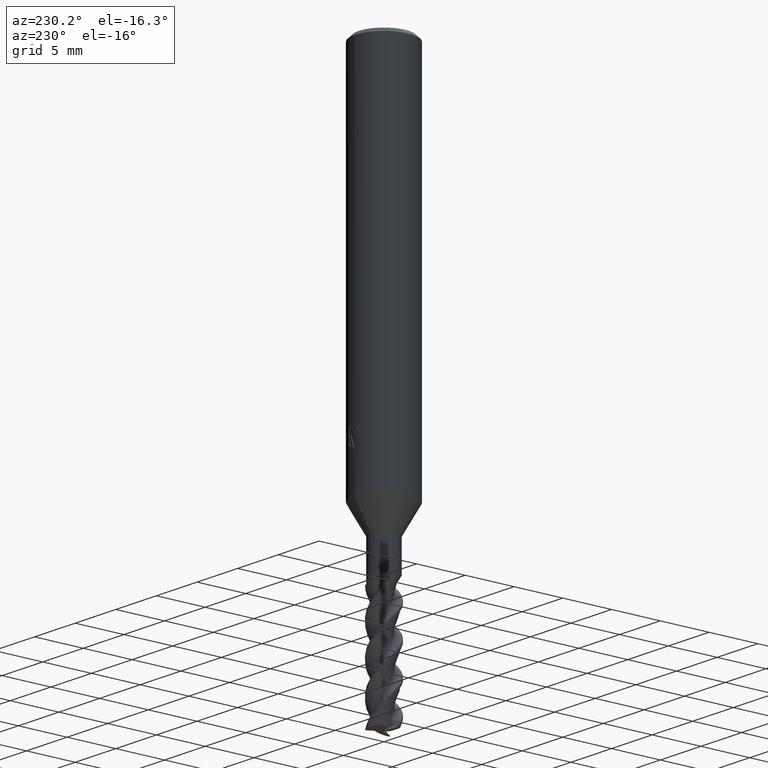
[diagram: clean part render]
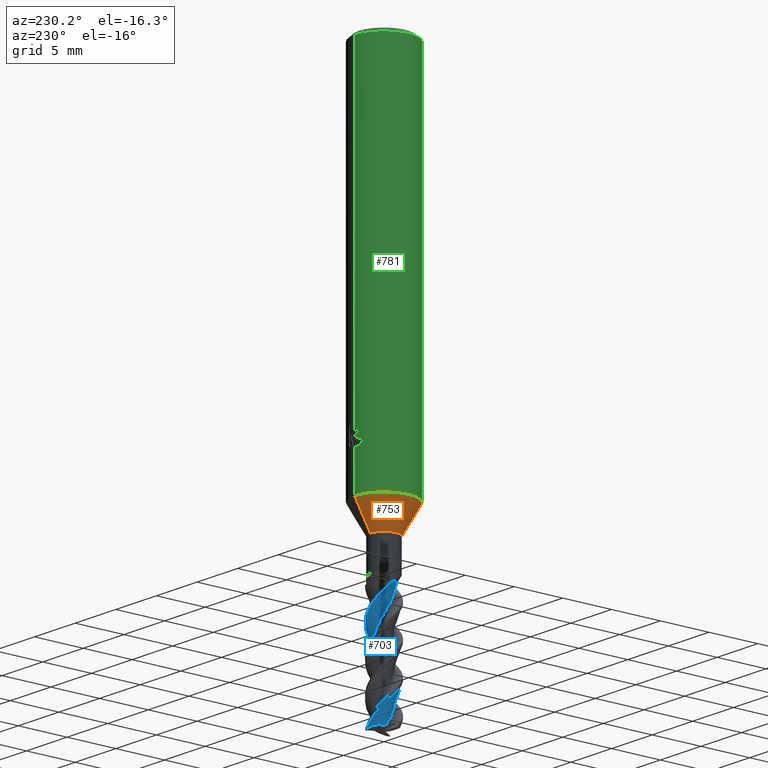
[diagram: same view with three faces highlighted in distinct colors, each labeled with its STEP entity id]
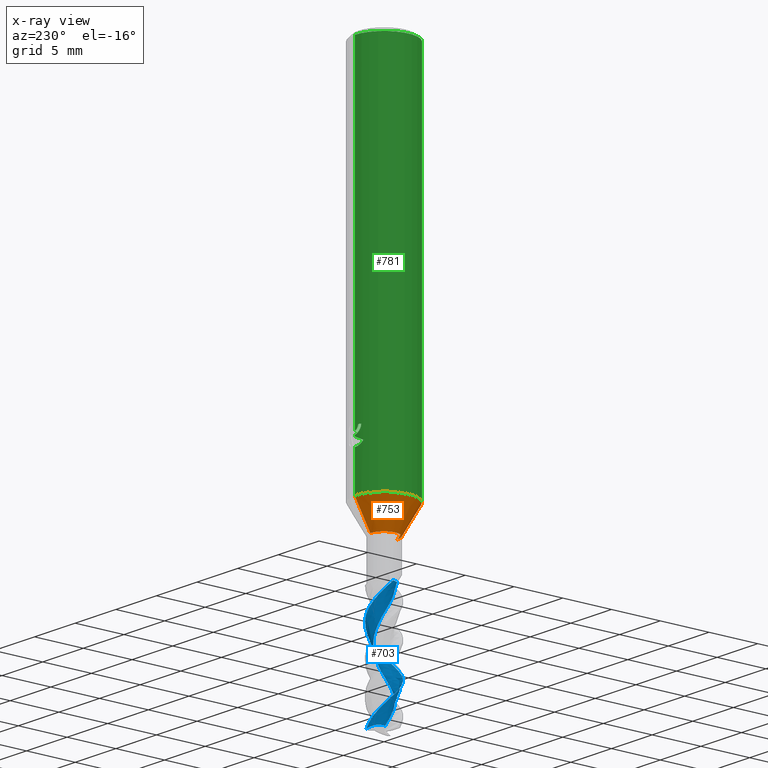
[diagram: x-ray of the same camera — body ghosted, the three highlighted faces saturated]
A machine part, auxiliary view with three faces highlighted in distinct colors.
The next image is the same camera in x-ray (body ghosted, the three faces saturated) — at least one of them is partly hidden behind the body in this view.
Their STEP definitions:

[orange] entity #753 — the highlighted conical surface has half-angle 30.003 deg.
#447=VERTEX_POINT('',#1290);
#455=EDGE_CURVE('',#447,#1127,#1300,.T.);
#475=VERTEX_POINT('',#1321);
#493=EDGE_CURVE('',#447,#475,#1340,.T.);
#753=ADVANCED_FACE('',(#1627),#1628,.T.);
#1023=EDGE_CURVE('',#1109,#475,#1925,.T.);
#1039=EDGE_CURVE('',#1127,#1109,#1942,.T.);
#1109=VERTEX_POINT('',#2019);
#1127=VERTEX_POINT('',#2037);
#1290=CARTESIAN_POINT('',(1.71438766503364E-016,-1.39995,-41.0));
#1300=LINE('',#2214,#2215);
#1321=CARTESIAN_POINT('',(0.0,1.39995,-41.0));
#1340=CIRCLE('',#2461,1.39995);
#1627=FACE_OUTER_BOUND('',#5024,.T.);
#1628=CONICAL_SURFACE('',#5025,2.19995,0.523642730836667);
#1925=LINE('',#7100,#7101);
#1942=CIRCLE('',#7189,2.99995);
#2019=CARTESIAN_POINT('',(0.0,2.99995,-38.229));
#2037=CARTESIAN_POINT('',(3.67375783114944E-016,-2.99995,-38.229));
#2214=CARTESIAN_POINT('',(2.69407274809154E-016,-2.19995,-39.6145));
#2215=VECTOR('',#9489,1.0);
#2461=AXIS2_PLACEMENT_3D('',#9514,#9515,#9516);
#5024=EDGE_LOOP('',(#9831,#9832,#9833,#9834));
#5025=AXIS2_PLACEMENT_3D('',#9835,#9836,#9837);
#7100=CARTESIAN_POINT('',(-2.69407274809154E-016,2.19995,-39.6145));
#7101=VECTOR('',#10151,1.0);
#7189=AXIS2_PLACEMENT_3D('',#10163,#10164,#10165);
#9489=DIRECTION('',(6.12349792617489E-017,-0.500038065870028,0.866003425328654));
#9514=CARTESIAN_POINT('',(0.0,0.0,-41.0));
#9515=DIRECTION('',(0.0,0.0,-1.0));
#9516=DIRECTION('',(0.0,1.0,0.0));
#9831=ORIENTED_EDGE('',*,*,#1023,.T.);
#9832=ORIENTED_EDGE('',*,*,#493,.F.);
#9833=ORIENTED_EDGE('',*,*,#455,.T.);
#9834=ORIENTED_EDGE('',*,*,#1039,.T.);
#9835=CARTESIAN_POINT('',(0.0,0.0,-39.6145));
#9836=DIRECTION('',(-0.0,-0.0,1.0));
#9837=DIRECTION('',(0.0,1.0,0.0));
#10151=DIRECTION('',(6.12349792617489E-017,-0.500038065870028,-0.866003425328654));
#10163=CARTESIAN_POINT('',(0.0,0.0,-38.229));
#10164=DIRECTION('',(0.0,0.0,-1.0));
#10165=DIRECTION('',(0.0,1.0,0.0));

[blue] entity #703 — the highlighted face is a freeform B-spline surface patch.
#461=EDGE_CURVE('',#1167,#649,#1307,.T.);
#649=VERTEX_POINT('',#1511);
#651=VERTEX_POINT('',#1513);
#673=VERTEX_POINT('',#1537);
#697=EDGE_CURVE('',#941,#1167,#1563,.T.);
#703=ADVANCED_FACE('',(#1570),#1571,.T.);
#705=EDGE_CURVE('',#649,#1165,#1573,.T.);
#817=EDGE_CURVE('',#651,#901,#1699,.T.);
#901=VERTEX_POINT('',#1789);
#903=EDGE_CURVE('',#1065,#673,#1791,.T.);
#919=EDGE_CURVE('',#673,#651,#1807,.T.);
#941=VERTEX_POINT('',#1833);
#1055=EDGE_CURVE('',#1165,#1065,#1959,.T.);
#1065=VERTEX_POINT('',#1969);
#1165=VERTEX_POINT('',#2079);
#1167=VERTEX_POINT('',#2081);
#1199=EDGE_CURVE('',#941,#901,#2115,.T.);
#1307=B_SPLINE_CURVE_WITH_KNOTS('',3,(#2225,#2226,#2227,#2228,#2229,#2230,#2231,#2232,#2233,#2234,#2235,#2236,#2237,#2238,#2239,#2240,#2241,#2242,#2243,#2244,#2245,#2246,#2247,#2248,#2249,#2250,#2251,#2252,#2253,#2254,#2255,#2256,#2257,#2258,#2259,#2260,#2261,#2262,#2263,#2264,#2265,#2266,#2267,#2268,#2269,#2270,#2271,#2272,#2273,#2274,#2275,#2276),.UNSPECIFIED.,.F.,.F.,(4,2,2,2,2,2,2,2,2,2,2,2,2,2,2,2,2,2,2,2,2,2,2,2,2,4),(0.0,0.335784744485025,0.900218258308625,2.00728913039195,2.30662984356167,2.49481145178889,2.59872045961856,2.77701591779145,2.88371388111913,2.93617517319861,3.01654445982375,3.0433724284719,3.06262599934318,3.07270456719304,3.0844253360041,3.10307423951914,3.11029806399619,3.11596061731137,3.1189593010885,3.12597468859705,3.12882863639295,3.14073274587673,3.14699737106801,3.15115317764953,3.1582665146102,3.16414719072707),.UNSPECIFIED.);
#1511=CARTESIAN_POINT('',(-1.72818149550161E-009,1.49999587007742,-56.5044092900785));
#1513=CARTESIAN_POINT('',(-0.543192040309939,-0.698284256612274,-45.0));
#1537=CARTESIAN_POINT('',(-1.47462124527694,0.274211949006387,-45.0));
#1563=B_SPLINE_CURVE_WITH_KNOTS('',3,(#4070,#4071,#4072,#4073,#4074,#4075,#4076,#4077,#4078,#4079,#4080,#4081),.UNSPECIFIED.,.F.,.F.,(4,2,2,2,2,4),(0.0,0.443561133397149,0.85743354970941,1.2962677194808,1.61144591278835,1.95448455100426),.UNSPECIFIED.);
#1570=FACE_OUTER_BOUND('',#4141,.T.);
#1571=B_SPLINE_SURFACE_WITH_KNOTS('',3,3,((#4142,#4143,#4144,#4145,#4146,#4147,#4148,#4149,#4150,#4151,#4152,#4153,#4154,#4155,#4156,#4157,#4158,#4159,#4160,#4161,#4162,#4163,#4164,#4165,#4166,#4167,#4168,#4169,#4170,#4171,#4172,#4173,#4174,#4175,#4176,#4177,#4178,#4179,#4180,#4181,#4182,#4183,#4184,#4185,#4186,#4187,#4188,#4189,#4190,#4191,#4192,#4193,#4194,#4195,#4196,#4197,#4198,#4199,#4200,#4201,#4202,#4203,#4204,#4205,#4206,#4207,#4208),(#4209,#4210,#4211,#4212,#4213,#4214,#4215,#4216,#4217,#4218,#4219,#4220,#4221,#4222,#4223,#4224,#4225,#4226,#4227,#4228,#4229,#4230,#4231,#4232,#4233,#4234,#4235,#4236,#4237,#4238,#4239,#4240,#4241,#4242,#4243,#4244,#4245,#4246,#4247,#4248,#4249,#4250,#4251,#4252,#4253,#4254,#4255,#4256,#4257,#4258,#4259,#4260,#4261,#4262,#4263,#4264,#4265,#4266,#4267,#4268,#4269,#4270,#4271,#4272,#4273,#4274,#4275),(#4276,#4277,#4278,#4279,#4280,#4281,#4282,#4283,#4284,#4285,#4286,#4287,#4288,#4289,#4290,#4291,#4292,#4293,#4294,#4295,#4296,#4297,#4298,#4299,#4300,#4301,#4302,#4303,#4304,#4305,#4306,#4307,#4308,#4309,#4310,#4311,#4312,#4313,#4314,#4315,#4316,#4317,#4318,#4319,#4320,#4321,#4322,#4323,#4324,#4325,#4326,#4327,#4328,#4329,#4330,#4331,#4332,#4333,#4334,#4335,#4336,#4337,#4338,#4339,#4340,#4341,#4342),(#4343,#4344,#4345,#4346,#4347,#4348,#4349,#4350,#4351,#4352,#4353,#4354,#4355,#4356,#4357,#4358,#4359,#4360,#4361,#4362,#4363,#4364,#4365,#4366,#4367,#4368,#4369,#4370,#4371,#4372,#4373,#4374,#4375,#4376,#4377,#4378,#4379,#4380,#4381,#4382,#4383,#4384,#4385,#4386,#4387,#4388,#4389,#4390,#4391,#4392,#4393,#4394,#4395,#4396,#4397,#4398,#4399,#4400,#4401,#4402,#4403,#4404,#4405,#4406,#4407,#4408,#4409),(#4410,#4411,#4412,#4413,#4414,#4415,#4416,#4417,#4418,#4419,#4420,#4421,#4422,#4423,#4424,#4425,#4426,#4427,#4428,#4429,#4430,#4431,#4432,#4433,#4434,#4435,#4436,#4437,#4438,#4439,#4440,#4441,#4442,#4443,#4444,#4445,#4446,#4447,#4448,#4449,#4450,#4451,#4452,#4453,#4454,#4455,#4456,#4457,#4458,#4459,#4460,#4461,#4462,#4463,#4464,#4465,#4466,#4467,#4468,#4469,#4470,#4471,#4472,#4473,#4474,#4475,#4476),(#4477,#4478,#4479,#4480,#4481,#4482,#4483,#4484,#4485,#4486,#4487,#4488,#4489,#4490,#4491,#4492,#4493,#4494,#4495,#4496,#4497,#4498,#4499,#4500,#4501,#4502,#4503,#4504,#4505,#4506,#4507,#4508,#4509,#4510,#4511,#4512,#4513,#4514,#4515,#4516,#4517,#4518,#4519,#4520,#4521,#4522,#4523,#4524,#4525,#4526,#4527,#4528,#4529,#4530,#4531,#4532,#4533,#4534,#4535,#4536,#4537,#4538,#4539,#4540,#4541,#4542,#4543)),.UNSPECIFIED.,.F.,.F.,.F.,(4,1,1,4),(4,1,2,1,2,1,2,1,1,2,2,2,2,2,2,2,2,2,2,2,2,2,2,2,2,2,2,2,2,2,2,2,1,1,2,2,4),(-1.37901021707789,-0.861881385673684,-0.344752554269474,0.0),(0.0,0.28264834390618,0.565296687812361,0.847945031718541,1.13059337562472,1.69589006343708,2.26118675124944,2.68515926710871,3.10913178296798,3.39178012687416,3.95707681468652,4.52237350249889,5.08767019031125,5.65296687812361,6.21826356593597,6.78356025374833,7.34885694156069,7.91415362937305,8.47945031718541,9.04474700499777,9.61004369281013,10.1753403806225,10.7406370684349,11.3059337562472,11.8712304440596,12.4365271318719,13.0018238196843,13.5671205074967,14.132417195309,14.6977138831214,15.2630105709337,15.8283072587461,16.1109556026523,16.5349281185115,16.9589006343708,17.5241973221832,18.0894940099955),.UNSPECIFIED.);
#1573=B_SPLINE_CURVE_WITH_KNOTS('',3,(#4546,#4547,#4548,#4549,#4550,#4551,#4552,#4553,#4554,#4555,#4556,#4557,#4558,#4559,#4560,#4561,#4562,#4563,#4564,#4565,#4566,#4567,#4568,#4569,#4570,#4571,#4572,#4573,#4574,#4575,#4576,#4577,#4578,#4579,#4580,#4581,#4582,#4583,#4584,#4585,#4586,#4587,#4588,#4589,#4590,#4591,#4592,#4593,#4594,#4595,#4596,#4597),.UNSPECIFIED.,.F.,.F.,(4,2,2,2,2,2,2,2,2,2,2,2,2,2,2,2,2,2,2,2,2,2,2,2,2,4),(0.0,0.335784744485025,0.900218258308625,2.00728913039195,2.30662984356167,2.49481145178889,2.59872045961856,2.77701591779145,2.88371388111913,2.93617517319861,3.01654445982375,3.0433724284719,3.06262599934318,3.07270456719304,3.0844253360041,3.10307423951914,3.11029806399619,3.11596061731137,3.1189593010885,3.12597468859705,3.12882863639295,3.14073274587673,3.14699737106801,3.15115317764953,3.1582665146102,3.16414719072707),.UNSPECIFIED.);
#1699=B_SPLINE_CURVE_WITH_KNOTS('',3,(#5665,#5666,#5667,#5668,#5669,#5670,#5671,#5672,#5673,#5674),.UNSPECIFIED.,.F.,.F.,(4,2,2,2,4),(0.0,0.484478482145497,0.968928230783798,1.33207712092287,1.6952163034577),.UNSPECIFIED.);
#1789=CARTESIAN_POINT('',(-0.45306024224006,-0.716179641491189,-45.0));
#1791=B_SPLINE_CURVE_WITH_KNOTS('',3,(#6027,#6028,#6029,#6030,#6031,#6032,#6033,#6034,#6035,#6036,#6037,#6038,#6039,#6040,#6041,#6042,#6043,#6044,#6045,#6046,#6047,#6048,#6049,#6050,#6051,#6052,#6053,#6054,#6055,#6056,#6057,#6058,#6059,#6060,#6061,#6062,#6063,#6064,#6065,#6066,#6067,#6068,#6069,#6070,#6071,#6072,#6073,#6074,#6075,#6076,#6077,#6078),.UNSPECIFIED.,.F.,.F.,(4,2,2,2,2,2,2,2,2,2,2,2,2,2,2,2,2,2,2,2,2,2,2,2,2,4),(0.0,0.335784744485025,0.900218258308625,2.00728913039195,2.30662984356167,2.49481145178889,2.59872045961856,2.77701591779145,2.88371388111913,2.93617517319861,3.01654445982375,3.0433724284719,3.06262599934318,3.07270456719304,3.0844253360041,3.10307423951914,3.11029806399619,3.11596061731137,3.1189593010885,3.12597468859705,3.12882863639295,3.14073274587673,3.14699737106801,3.15115317764953,3.1582665146102,3.16414719072707),.UNSPECIFIED.);
#1807=B_SPLINE_CURVE_WITH_KNOTS('',3,(#6105,#6106,#6107,#6108,#6109,#6110,#6111,#6112,#6113,#6114),.UNSPECIFIED.,.F.,.F.,(4,2,2,2,4),(0.0,0.484478482145497,0.968928230783798,1.33207712092287,1.6952163034577),.UNSPECIFIED.);
#1833=CARTESIAN_POINT('',(-0.708387927515714,0.466406533219846,-56.7912450452387));
#1959=B_SPLINE_CURVE_WITH_KNOTS('',3,(#7238,#7239,#7240,#7241,#7242,#7243,#7244,#7245,#7246,#7247,#7248,#7249,#7250,#7251,#7252,#7253,#7254,#7255,#7256,#7257,#7258,#7259,#7260,#7261,#7262,#7263,#7264,#7265,#7266,#7267,#7268,#7269,#7270,#7271,#7272,#7273,#7274,#7275,#7276,#7277,#7278,#7279,#7280,#7281,#7282,#7283,#7284,#7285,#7286,#7287,#7288,#7289),.UNSPECIFIED.,.F.,.F.,(4,2,2,2,2,2,2,2,2,2,2,2,2,2,2,2,2,2,2,2,2,2,2,2,2,4),(0.0,0.335784744485025,0.900218258308625,2.00728913039195,2.30662984356167,2.49481145178889,2.59872045961856,2.77701591779145,2.88371388111913,2.93617517319861,3.01654445982375,3.0433724284719,3.06262599934318,3.07270456719304,3.0844253360041,3.10307423951914,3.11029806399619,3.11596061731137,3.1189593010885,3.12597468859705,3.12882863639295,3.14073274587673,3.14699737106801,3.15115317764953,3.1582665146102,3.16414719072707),.UNSPECIFIED.);
#1969=CARTESIAN_POINT('',(5.02184909250198E-014,1.49991730039272,-47.0760471261266));
#2079=CARTESIAN_POINT('',(3.13913062189314E-009,-1.49995661223871,-51.7934686449026));
#2081=CARTESIAN_POINT('',(0.462884670952389,1.42679252223007,-56.9648037701929));
#2115=B_SPLINE_CURVE_WITH_KNOTS('',3,(#9185,#9186,#9187,#9188,#9189,#9190,#9191,#9192,#9193,#9194,#9195,#9196,#9197,#9198,#9199,#9200,#9201,#9202,#9203,#9204,#9205,#9206,#9207,#9208,#9209,#9210,#9211,#9212,#9213,#9214,#9215,#9216,#9217,#9218,#9219,#9220,#9221,#9222,#9223,#9224,#9225,#9226,#9227,#9228,#9229,#9230,#9231,#9232,#9233,#9234,#9235,#9236,#9237,#9238,#9239,#9240,#9241,#9242,#9243,#9244,#9245,#9246,#9247,#9248,#9249,#9250,#9251,#9252,#9253,#9254,#9255,#9256,#9257,#9258,#9259,#9260,#9261,#9262,#9263,#9264,#9265,#9266,#9267,#9268,#9269,#9270,#9271,#9272,#9273,#9274,#9275,#9276,#9277,#9278,#9279,#9280,#9281,#9282,#9283,#9284,#9285,#9286,#9287,#9288,#9289,#9290),.UNSPECIFIED.,.F.,.F.,(4,2,2,2,2,2,2,2,2,2,2,2,2,2,2,2,2,2,2,2,2,2,2,2,2,2,2,2,2,2,2,2,2,2,2,2,2,2,2,2,2,2,2,2,2,2,2,2,2,2,2,2,4),(-2.96306627762569,-2.96283491642798,-2.96246826354313,-2.96220045708334,-2.96209100045431,-2.96186243251804,-2.96151811162838,-2.96115460819838,-2.96086510101758,-2.960280978162,-2.9597786632126,-2.95865050812058,-2.95756209555717,-2.95621699719974,-2.95573151120857,-2.95449417955791,-2.95191228117216,-2.95060271671424,-2.94789838394698,-2.94564239957483,-2.94057294141096,-2.9357450698218,-2.92977494294032,-2.92757047423404,-2.92197072646106,-2.91018335135469,-2.90422381086335,-2.89187596549351,-2.88167399408204,-2.8588818350918,-2.83696454458899,-2.81000972375811,-2.80003558878217,-2.77471007781571,-2.72134887494441,-2.69437819842017,-2.63849052786713,-2.5923335221113,-2.48925544314555,-2.39004901439442,-2.26816566021116,-2.17070591611219,-1.95777287310117,-1.74083362306664,-1.50643269678885,-1.43460360653714,-1.24869074684838,-0.875175764393088,-0.683384120286806,-0.493525507638708,-0.412980130193546,-0.238536444428689,-0.0),.UNSPECIFIED.);
#2225=CARTESIAN_POINT('',(0.495588686639535,1.41576546563154,-57.0));
#2226=CARTESIAN_POINT('',(0.421699457025819,1.44162968339941,-56.920004020583));
#2227=CARTESIAN_POINT('',(0.345134829858748,1.46194148616394,-56.8403946239205));
#2228=CARTESIAN_POINT('',(0.134153276522927,1.50002097752449,-56.6302504631107));
#2229=CARTESIAN_POINT('',(0.00179547763044238,1.50613381156919,-56.5082538482105));
#2230=CARTESIAN_POINT('',(-0.398904409328534,1.47032247387351,-56.1059615637585));
#2231=CARTESIAN_POINT('',(-0.656304443995121,1.37607644936797,-55.8224784063724));
#2232=CARTESIAN_POINT('',(-0.937253212357702,1.17343705497586,-55.4891564008471));
#2233=CARTESIAN_POINT('',(-1.07160800886317,1.07214008442156,-55.3332472465616));
#2234=CARTESIAN_POINT('',(-1.28463774995242,0.786494416127152,-54.9693551876277));
#2235=CARTESIAN_POINT('',(-1.3514989175209,0.66520266208164,-54.8261650194681));
#2236=CARTESIAN_POINT('',(-1.42816726848066,0.464867146512914,-54.6090239083568));
#2237=CARTESIAN_POINT('',(-1.4502701755888,0.39083446297095,-54.5323650441782));
#2238=CARTESIAN_POINT('',(-1.49472975229674,0.183485095753831,-54.3273128447971));
#2239=CARTESIAN_POINT('',(-1.51734974769528,-0.00778174907122228,-54.1471095335447));
#2240=CARTESIAN_POINT('',(-1.46020501569385,-0.36948021233142,-53.7710964162675));
#2241=CARTESIAN_POINT('',(-1.42018358096051,-0.502328742795428,-53.6281669777912));
#2242=CARTESIAN_POINT('',(-1.33324777275338,-0.690678142567897,-53.4206160921322));
#2243=CARTESIAN_POINT('',(-1.30007576272406,-0.751400390712668,-53.3528417446881));
#2244=CARTESIAN_POINT('',(-1.20442491829872,-0.900412920160359,-53.1835992862496));
#2245=CARTESIAN_POINT('',(-1.0412757087855,-1.1385763180535,-52.9105759590264));
#2246=CARTESIAN_POINT('',(-0.61906851306153,-1.37157017952392,-52.4166575606282));
#2247=CARTESIAN_POINT('',(-0.505002307104041,-1.41790088071489,-52.2936272887575));
#2248=CARTESIAN_POINT('',(-0.297707192789448,-1.47284626807365,-52.087962489863));
#2249=CARTESIAN_POINT('',(-0.0991918365357573,-1.51948338706647,-51.8977821851552));
#2250=CARTESIAN_POINT('',(0.298073219858977,-1.47643685454509,-51.4866961249882));
#2251=CARTESIAN_POINT('',(0.43323551663717,-1.4428238847567,-51.343607723133));
#2252=CARTESIAN_POINT('',(0.713734899294974,-1.32925077224749,-51.042792889186));
#2253=CARTESIAN_POINT('',(0.850890529333471,-1.24596760820375,-50.8965574945521));
#2254=CARTESIAN_POINT('',(1.17207683731866,-0.971297908052357,-50.4723247676338));
#2255=CARTESIAN_POINT('',(1.3317248514767,-0.746252450592177,-50.1866627630443));
#2256=CARTESIAN_POINT('',(1.45698916072365,-0.372947388706531,-49.8099011857391));
#2257=CARTESIAN_POINT('',(1.50569926661703,-0.192335497707508,-49.63305643697));
#2258=CARTESIAN_POINT('',(1.49443816233607,0.223224523377159,-49.2056929245386));
#2259=CARTESIAN_POINT('',(1.45605402930537,0.406768019860923,-49.0139596919411));
#2260=CARTESIAN_POINT('',(1.34400638221744,0.673399406846149,-48.7343026401242));
#2261=CARTESIAN_POINT('',(1.28341119118271,0.792285386437317,-48.6101037911576));
#2262=CARTESIAN_POINT('',(0.959953515858688,1.21057027411054,-48.0765690012938));
#2263=CARTESIAN_POINT('',(0.684025409802291,1.34417074797023,-47.7736572389021));
#2264=CARTESIAN_POINT('',(0.476658656239133,1.42361658996527,-47.563410297214));
#2265=CARTESIAN_POINT('',(0.415945865936118,1.44246508865925,-47.5018771656047));
#2266=CARTESIAN_POINT('',(0.100014950304375,1.51938889035683,-47.1803800913509));
#2267=CARTESIAN_POINT('',(-0.166412163817259,1.51371507744372,-46.9036108793167));
#2268=CARTESIAN_POINT('',(-0.552131917934716,1.40145446291707,-46.5092491716416));
#2269=CARTESIAN_POINT('',(-0.676766354333359,1.34582593313994,-46.3835968671183));
#2270=CARTESIAN_POINT('',(-0.873837294049283,1.2225914032173,-46.1506988945347));
#2271=CARTESIAN_POINT('',(-0.947121438056285,1.16663248907381,-46.0564086508929));
#2272=CARTESIAN_POINT('',(-1.12957763179067,0.99910983160333,-45.8012402652973));
#2273=CARTESIAN_POINT('',(-1.22938239454233,0.874275740611077,-45.6382378154275));
#2274=CARTESIAN_POINT('',(-1.3735011816044,0.617242968777582,-45.351470328573));
#2275=CARTESIAN_POINT('',(-1.43940873727146,0.463582126781001,-45.1962632358606));
#2276=CARTESIAN_POINT('',(-1.47462124527694,0.274211949006404,-45.0));
#4070=CARTESIAN_POINT('',(-0.709620087130326,0.457981615038838,-56.7922670403609));
#4071=CARTESIAN_POINT('',(-0.688871827971802,0.603289949398419,-56.7744985963335));
#4072=CARTESIAN_POINT('',(-0.64280217809729,0.743888793272749,-56.7646204085519));
#4073=CARTESIAN_POINT('',(-0.501844862632431,0.992021775726104,-56.7639725592326));
#4074=CARTESIAN_POINT('',(-0.412775268992186,1.09691093271641,-56.7719954612042));
#4075=CARTESIAN_POINT('',(-0.193108527749238,1.27334989875971,-56.8051429547749));
#4076=CARTESIAN_POINT('',(-0.0644165534795469,1.33925721935192,-56.8306481302944));
#4077=CARTESIAN_POINT('',(0.170568242405531,1.40881422726196,-56.8854699782026));
#4078=CARTESIAN_POINT('',(0.27162129289015,1.42439067608545,-56.911374618314));
#4079=CARTESIAN_POINT('',(0.482948293480785,1.43068374262914,-56.9698172800017));
#4080=CARTESIAN_POINT('',(0.592586461046095,1.41907530506222,-57.0025541276673));
#4081=CARTESIAN_POINT('',(0.69896785982176,1.39425055950465,-57.0365216767496));
#4141=EDGE_LOOP('',(#9752,#9753,#9754,#9755,#9756,#9757,#9758,#9759));
#4142=CARTESIAN_POINT('',(1.0818724398929,-1.12390036191185,-60.0));
#4143=CARTESIAN_POINT('',(1.11259160832009,-1.0944831254953,-59.9062472136295));
#4144=CARTESIAN_POINT('',(1.19503100613329,-1.01139402726058,-59.7187664815209));
#4145=CARTESIAN_POINT('',(1.30750088596949,-0.857631761087166,-59.5312868911648));
#4146=CARTESIAN_POINT('',(1.41705019556677,-0.660472688876507,-59.3437667958251));
#4147=CARTESIAN_POINT('',(1.49933844320333,-0.463361914018934,-59.1562438658431));
#4148=CARTESIAN_POINT('',(1.53937503733965,-0.268522749570971,-58.9687393257113));
#4149=CARTESIAN_POINT('',(1.57194633918049,0.0263806195281832,-58.687502012446));
#4150=CARTESIAN_POINT('',(1.54095851806043,0.402815093430767,-58.3125028811778));
#4151=CARTESIAN_POINT('',(1.37963348262373,0.755862025245339,-57.937526250671));
#4152=CARTESIAN_POINT('',(1.16589879774969,1.04728392605779,-57.6093926414607));
#4153=CARTESIAN_POINT('',(0.957948630643784,1.25499612962626,-57.3281237222664));
#4154=CARTESIAN_POINT('',(0.630371794986704,1.44194743870235,-56.9531259903456));
#4155=CARTESIAN_POINT('',(0.392330797307619,1.51286265520913,-56.7187599188599));
#4156=CARTESIAN_POINT('',(0.0890881530768834,1.57052566812806,-56.4375118269946));
#4157=CARTESIAN_POINT('',(-0.104585839740336,1.56767105784932,-56.2500024396686));
#4158=CARTESIAN_POINT('',(-0.477133988910891,1.49691800638667,-55.8750028036659));
#4159=CARTESIAN_POINT('',(-0.658137454010031,1.42867479084619,-55.6875125580477));
#4160=CARTESIAN_POINT('',(-1.00569847462951,1.20952484047743,-55.3125120842336));
#4161=CARTESIAN_POINT('',(-1.14512925310349,1.07571226130593,-55.1250020259868));
#4162=CARTESIAN_POINT('',(-1.36923448802218,0.770423029541366,-54.7500019829544));
#4163=CARTESIAN_POINT('',(-1.45522002452324,0.597223769649273,-54.5625119984433));
#4164=CARTESIAN_POINT('',(-1.56031911585239,0.199618828607973,-54.1875118329358));
#4165=CARTESIAN_POINT('',(-1.57112915455381,0.00652260806313343,-54.0000017306805));
#4166=CARTESIAN_POINT('',(-1.52697841593204,-0.369741754152878,-53.6250015646107));
#4167=CARTESIAN_POINT('',(-1.47180846261341,-0.555067178800483,-53.437511500485));
#4168=CARTESIAN_POINT('',(-1.27771456914723,-0.917535735767364,-53.0625114341023));
#4169=CARTESIAN_POINT('',(-1.15402018172363,-1.06617354326831,-52.8750013983539));
#4170=CARTESIAN_POINT('',(-0.865252041703758,-1.31137687222811,-52.5000013123698));
#4171=CARTESIAN_POINT('',(-0.698555447781171,-1.4093766327435,-52.3125112622534));
#4172=CARTESIAN_POINT('',(-0.309459498579287,-1.54229167107057,-51.9375111409895));
#4173=CARTESIAN_POINT('',(-0.117637989882863,-1.56673230954046,-51.750001084363));
#4174=CARTESIAN_POINT('',(0.260785973439628,-1.54930993703802,-51.3750009766956));
#4175=CARTESIAN_POINT('',(0.449553812784772,-1.50739001629847,-51.1875109256266));
#4176=CARTESIAN_POINT('',(0.824852575300217,-1.33942062568606,-50.8125108156497));
#4177=CARTESIAN_POINT('',(0.981867517416756,-1.22655029377111,-50.6250007621574));
#4178=CARTESIAN_POINT('',(1.2468824554253,-0.955853082909097,-50.2500006554807));
#4179=CARTESIAN_POINT('',(1.35642803115409,-0.796508631862016,-50.0625106022868));
#4180=CARTESIAN_POINT('',(1.51653563195174,-0.417790156339548,-49.6875104855953));
#4181=CARTESIAN_POINT('',(1.55448510596629,-0.228177564071871,-49.5000004304955));
#4182=CARTESIAN_POINT('',(1.56387666734682,0.150532311199026,-49.1250003232164));
#4183=CARTESIAN_POINT('',(1.53541516259264,0.341793552998637,-48.9375102710224));
#4184=CARTESIAN_POINT('',(1.39441503310761,0.728035013203333,-48.5625101562857));
#4185=CARTESIAN_POINT('',(1.29293435685176,0.892641692925868,-48.3750001009082));
#4186=CARTESIAN_POINT('',(1.04166069242176,1.17614318806485,-47.9999999882735));
#4187=CARTESIAN_POINT('',(0.89046319179103,1.29668701067195,-47.8125099309894));
#4188=CARTESIAN_POINT('',(0.524016608606498,1.4831838914026,-47.4375098004873));
#4189=CARTESIAN_POINT('',(0.337563395458672,1.53445090829404,-47.2499997478034));
#4190=CARTESIAN_POINT('',(-0.0395404039671746,1.57060710800135,-46.8749996617791));
#4191=CARTESIAN_POINT('',(-0.232343224089508,1.55574540813598,-46.6875096285459));
#4192=CARTESIAN_POINT('',(-0.627615891833496,1.44240543942226,-46.3125095486271));
#4193=CARTESIAN_POINT('',(-0.798985437256069,1.35281433392037,-46.1249994783833));
#4194=CARTESIAN_POINT('',(-1.09951774179746,1.12224238631651,-45.7499993470376));
#4195=CARTESIAN_POINT('',(-1.23042535083369,0.979978927720002,-45.5625092858211));
#4196=CARTESIAN_POINT('',(-1.44234087893573,0.627739843744395,-45.1875092476355));
#4197=CARTESIAN_POINT('',(-1.50670201625218,0.44536961022746,-44.9999992449165));
#4198=CARTESIAN_POINT('',(-1.56947511265725,0.0716471626048257,-44.624999005683));
#4199=CARTESIAN_POINT('',(-1.56828213396528,-0.121832257459124,-44.437508768544));
#4200=CARTESIAN_POINT('',(-1.50440506480669,-0.423654676046873,-44.1562581168483));
#4201=CARTESIAN_POINT('',(-1.42857244730803,-0.660284116607025,-43.9218747727391));
#4202=CARTESIAN_POINT('',(-1.2344667806325,-0.984253947139421,-43.5468706120809));
#4203=CARTESIAN_POINT('',(-1.02256091757988,-1.18754447833534,-43.2656352862255));
#4204=CARTESIAN_POINT('',(-0.727833613344265,-1.39455500415962,-42.9375128139711));
#4205=CARTESIAN_POINT('',(-0.550048840162801,-1.47168573694151,-42.7500020212529));
#4206=CARTESIAN_POINT('',(-0.18241938455448,-1.56047129132992,-42.3749988608727));
#4207=CARTESIAN_POINT('',(0.0094303496882121,-1.57268083611714,-42.1875064699942));
#4208=CARTESIAN_POINT('',(0.21075197916808,-1.54520882904501,-42.0000061981756));
#4209=CARTESIAN_POINT('',(1.17847804800101,-0.933191952056812,-60.0));
#4210=CARTESIAN_POINT('',(1.2034050496801,-0.900840742263432,-59.906217831718));
#4211=CARTESIAN_POINT('',(1.27046488477451,-0.810523025081752,-59.7188318108223));
#4212=CARTESIAN_POINT('',(1.35785843616275,-0.649305538603335,-59.5314722320527));
#4213=CARTESIAN_POINT('',(1.43728877643359,-0.447105332706858,-59.3438579161368));
#4214=CARTESIAN_POINT('',(1.49055590091731,-0.248405484228556,-59.1562193592263));
#4215=CARTESIAN_POINT('',(1.50361157985151,-0.0573191959646069,-58.9686876768721));
#4216=CARTESIAN_POINT('',(1.49663134606262,0.228279939610423,-58.6875113416774));
#4217=CARTESIAN_POINT('',(1.41821362986459,0.583379425668711,-58.3125164294946));
#4218=CARTESIAN_POINT('',(1.2186430762619,0.899311808399555,-57.9376628899305));
#4219=CARTESIAN_POINT('',(0.977211069834356,1.14997289812935,-57.6094870668528));
#4220=CARTESIAN_POINT('',(0.751936698565499,1.32129825320602,-57.3281221403537));
#4221=CARTESIAN_POINT('',(0.415190655366198,1.45715619897278,-56.9531360549941));
#4222=CARTESIAN_POINT('',(0.17891077222887,1.49411436138271,-56.7188156564168));
#4223=CARTESIAN_POINT('',(-0.117904212450367,1.51015751527624,-56.4375774331218));
#4224=CARTESIAN_POINT('',(-0.302330118564445,1.4823548454919,-56.250020247761));
#4225=CARTESIAN_POINT('',(-0.648594428348641,1.36660203424892,-55.8750231072091));
#4226=CARTESIAN_POINT('',(-0.812432327367937,1.27807065535103,-55.6875831728739));
#4227=CARTESIAN_POINT('',(-1.11594895539628,1.02423449761896,-55.3125809392622));
#4228=CARTESIAN_POINT('',(-1.23165583907119,0.878498651837717,-55.1250196840758));
#4229=CARTESIAN_POINT('',(-1.40591641328206,0.558211400510464,-54.750019958384));
#4230=CARTESIAN_POINT('',(-1.46552329602539,0.381855056216906,-54.5625814842339));
#4231=CARTESIAN_POINT('',(-1.51470412561334,-0.011113886875195,-54.1875810013858));
#4232=CARTESIAN_POINT('',(-1.50001105209645,-0.196757255784976,-54.0000194651008));
#4233=CARTESIAN_POINT('',(-1.40915237809694,-0.550010420534306,-53.6250190105395));
#4234=CARTESIAN_POINT('',(-1.33253217113048,-0.719662498140777,-53.4375800874764));
#4235=CARTESIAN_POINT('',(-1.10069349412629,-1.04063004344406,-53.062580246117));
#4236=CARTESIAN_POINT('',(-0.963420187284365,-1.16643357831509,-52.8750191203828));
#4237=CARTESIAN_POINT('',(-0.656162373853197,-1.36296392152336,-52.5000191497953));
#4238=CARTESIAN_POINT('',(-0.484454000580821,-1.43487367384487,-52.3125803040209));
#4239=CARTESIAN_POINT('',(-0.0960292791174734,-1.51169371025511,-51.9375801135191));
#4240=CARTESIAN_POINT('',(0.0901629866710743,-1.51017109325402,-51.7500188641194));
#4241=CARTESIAN_POINT('',(0.448938518466671,-1.44453246635952,-51.375018756452));
#4242=CARTESIAN_POINT('',(0.623589762682044,-1.3801067864522,-51.1875799118994));
#4243=CARTESIAN_POINT('',(0.960160933637832,-1.17155059981851,-50.8125797903827));
#4244=CARTESIAN_POINT('',(1.09535936315657,-1.04352017187104,-50.625018558071));
#4245=CARTESIAN_POINT('',(1.31313149651967,-0.750936588943272,-50.250018462934));
#4246=CARTESIAN_POINT('',(1.39700722618848,-0.584747307933947,-50.0625795953898));
#4247=CARTESIAN_POINT('',(1.50111286320027,-0.202730089501571,-49.6875794440794));
#4248=CARTESIAN_POINT('',(1.51276581696893,-0.0168959430893811,-49.5000181951091));
#4249=CARTESIAN_POINT('',(1.47267178411021,0.34562555115352,-49.1250180993697));
#4250=CARTESIAN_POINT('',(1.42076218731502,0.524397579421583,-48.9375792410409));
#4251=CARTESIAN_POINT('',(1.23653726549148,0.87487952538513,-48.5625790916852));
#4252=CARTESIAN_POINT('',(1.11839110620378,1.01879669964218,-48.3750178470578));
#4253=CARTESIAN_POINT('',(0.841943854914092,1.25672170447649,-48.0000177113438));
#4254=CARTESIAN_POINT('',(0.682102773554322,1.35214397591823,-47.8125788280837));
#4255=CARTESIAN_POINT('',(0.308404284127109,1.48301217651328,-47.4375785821849));
#4256=CARTESIAN_POINT('',(0.123859923189903,1.50778124280031,-47.250017357074));
#4257=CARTESIAN_POINT('',(-0.24059612340393,1.49342988584058,-46.8750173979861));
#4258=CARTESIAN_POINT('',(-0.422599247195904,1.45429454375511,-46.6875786475878));
#4259=CARTESIAN_POINT('',(-0.785256755367139,1.29530630560947,-46.3125787061448));
#4260=CARTESIAN_POINT('',(-0.937166601427266,1.18762875669405,-46.1250173500202));
#4261=CARTESIAN_POINT('',(-1.1940208115364,0.928725565377016,-45.7500170917383));
#4262=CARTESIAN_POINT('',(-1.30048581426671,0.776065436210799,-45.5625781864555));
#4263=CARTESIAN_POINT('',(-1.45743805491894,0.4126574859013,-45.1875785636976));
#4264=CARTESIAN_POINT('',(-1.49523005093217,0.230313241445307,-45.0000176994938));
#4265=CARTESIAN_POINT('',(-1.50671194094863,-0.134364761817402,-44.6250168371188));
#4266=CARTESIAN_POINT('',(-1.48052970619763,-0.318783176750121,-44.4375768317952));
#4267=CARTESIAN_POINT('',(-1.38076243379072,-0.598616035964392,-44.1563230903563));
#4268=CARTESIAN_POINT('',(-1.27787042789588,-0.814636843793983,-43.9218971839789));
#4269=CARTESIAN_POINT('',(-1.05067631670022,-1.0985321999998,-43.5468720264255));
#4270=CARTESIAN_POINT('',(-0.82223485549538,-1.26510413608195,-43.2657125238949));
#4271=CARTESIAN_POINT('',(-0.514346560630854,-1.42477798659496,-42.9376043694696));
#4272=CARTESIAN_POINT('',(-0.334723846986236,-1.47535596981916,-42.7500395449639));
#4273=CARTESIAN_POINT('',(0.0275098609987101,-1.51243672565113,-42.375014690029));
#4274=CARTESIAN_POINT('',(0.212107166672365,-1.49923480018272,-42.1875545813036));
#4275=CARTESIAN_POINT('',(0.40069318716919,-1.44710338779008,-42.0000379231724));
#4276=CARTESIAN_POINT('',(1.27072086753067,-0.5009460995105,-60.0));
#4277=CARTESIAN_POINT('',(1.28251982547332,-0.465793538982742,-59.9061650619035));
#4278=CARTESIAN_POINT('',(1.3150186765927,-0.369160379220946,-59.7189491423219));
#4279=CARTESIAN_POINT('',(1.34835070686755,-0.206301830340842,-59.5318051030254));
#4280=CARTESIAN_POINT('',(1.36491747324081,-0.00995198867777281,-59.3440215684994));
#4281=CARTESIAN_POINT('',(1.35934058737725,0.176578475884349,-59.1561753450263));
#4282=CARTESIAN_POINT('',(1.32045459585031,0.345897375719582,-58.9685949159396));
#4283=CARTESIAN_POINT('',(1.2393435013702,0.591986823723153,-58.6875280965452));
#4284=CARTESIAN_POINT('',(1.07741011993041,0.879365262603861,-58.3125407648196));
#4285=CARTESIAN_POINT('',(0.821024148895436,1.10089476976198,-57.9379082887632));
#4286=CARTESIAN_POINT('',(0.54578720986444,1.25544284773529,-57.6096566581145));
#4287=CARTESIAN_POINT('',(0.305127577050598,1.34488227941994,-57.3281192972927));
#4288=CARTESIAN_POINT('',(-0.0229282402361125,1.37377285975974,-56.9531541324266));
#4289=CARTESIAN_POINT('',(-0.237732863573613,1.34379315097864,-56.7189157599171));
#4290=CARTESIAN_POINT('',(-0.499693834585409,1.28005049016813,-56.4376952634007));
#4291=CARTESIAN_POINT('',(-0.652444117563667,1.20727487052251,-56.2500522301661));
#4292=CARTESIAN_POINT('',(-0.92238120361972,1.01548022195374,-55.875059573167));
#4293=CARTESIAN_POINT('',(-1.04118301626052,0.895475995690503,-55.6877099920352));
#4294=CARTESIAN_POINT('',(-1.23832832270494,0.595602629062746,-55.3127046074611));
#4295=CARTESIAN_POINT('',(-1.30031424063918,0.4385804776404,-55.1250514016497));
#4296=CARTESIAN_POINT('',(-1.36702111664729,0.114673286776355,-54.7500522384794));
#4297=CARTESIAN_POINT('',(-1.37223629341792,-0.0540448824646796,-54.562706285532));
#4298=CARTESIAN_POINT('',(-1.31210609916087,-0.408180242086225,-54.1877052226159));
#4299=CARTESIAN_POINT('',(-1.25038143803382,-0.565442574855622,-54.0000513162615));
#4300=CARTESIAN_POINT('',(-1.07833637699193,-0.848006241915119,-53.6250503431586));
#4301=CARTESIAN_POINT('',(-0.967131644113764,-0.974990213725348,-53.4377032710789));
#4302=CARTESIAN_POINT('',(-0.681797807396263,-1.19305255459603,-53.062703830649));
#4303=CARTESIAN_POINT('',(-0.529458682890342,-1.2660377355867,-52.8750509504169));
#4304=CARTESIAN_POINT('',(-0.210982702112612,-1.35550990012144,-52.5000511844175));
#4305=CARTESIAN_POINT('',(-0.043052948215936,-1.37262415817128,-52.3127042989716));
#4306=CARTESIAN_POINT('',(0.314369017472202,-1.33768348141892,-51.9377039917552));
#4307=CARTESIAN_POINT('',(0.475581745469484,-1.28724533415205,-51.7500507883838));
#4308=CARTESIAN_POINT('',(0.769591291193499,-1.135627568684,-51.3750506969404));
#4309=CARTESIAN_POINT('',(0.904127759039406,-1.03368458815139,-51.1877038024993));
#4310=CARTESIAN_POINT('',(1.14183412800902,-0.764486492359564,-50.8127036772482));
#4311=CARTESIAN_POINT('',(1.2254122986665,-0.617691831583372,-50.6250505231156));
#4312=CARTESIAN_POINT('',(1.33718865804004,-0.306344954105368,-50.2500504414068));
#4313=CARTESIAN_POINT('',(1.36613940502516,-0.140048454127545,-50.0627035187844));
#4314=CARTESIAN_POINT('',(1.3565710896878,0.218949883709587,-49.687703281243));
#4315=CARTESIAN_POINT('',(1.31766378885682,0.383327409288025,-49.5000501053403));
#4316=CARTESIAN_POINT('',(1.18722405387943,0.687327252186484,-49.1250500202366));
#4317=CARTESIAN_POINT('',(1.09505323956698,0.828738835696985,-48.9377031061555));
#4318=CARTESIAN_POINT('',(0.843344487061932,1.08489330792037,-48.5627029042177));
#4319=CARTESIAN_POINT('',(0.702829394487411,1.17864674717662,-48.3750497155179));
#4320=CARTESIAN_POINT('',(0.400167685539321,1.31216822631186,-48.0000495454766));
#4321=CARTESIAN_POINT('',(0.236334346357303,1.35281026139748,-47.8127025552647));
#4322=CARTESIAN_POINT('',(-0.122443726136974,1.36866027353313,-47.437702125621));
#4323=CARTESIAN_POINT('',(-0.289161668469548,1.34147791662684,-47.250048996769));
#4324=CARTESIAN_POINT('',(-0.60163224125412,1.23286611617031,-46.8750492386532));
#4325=CARTESIAN_POINT('',(-0.749215193571825,1.15092619194811,-46.6877026163677));
#4326=CARTESIAN_POINT('',(-1.02254831474147,0.917947749935252,-46.3127029019834));
#4327=CARTESIAN_POINT('',(-1.12600104463938,0.784410945235139,-46.1250494485449));
#4328=CARTESIAN_POINT('',(-1.28057634928019,0.491978369532557,-45.7500489600327));
#4329=CARTESIAN_POINT('',(-1.33269112003803,0.331463119934542,-45.5627019230501));
#4330=CARTESIAN_POINT('',(-1.37388392469563,-0.0252049822763563,-45.187703063799));
#4331=CARTESIAN_POINT('',(-1.35858660492588,-0.193448393020256,-45.0000508466293));
#4332=CARTESIAN_POINT('',(-1.27233648994996,-0.512928393696568,-44.6250488595309));
#4333=CARTESIAN_POINT('',(-1.20100002471654,-0.66602331965823,-44.4376990708988));
#4334=CARTESIAN_POINT('',(-1.04112728177308,-0.882928654567668,-44.1564397836728));
#4335=CARTESIAN_POINT('',(-0.895049544395181,-1.04345140345138,-43.9219374217813));
#4336=CARTESIAN_POINT('',(-0.622912475093352,-1.22975486344188,-43.5468745563132));
#4337=CARTESIAN_POINT('',(-0.380837312561659,-1.31419480323552,-43.2658512449383));
#4338=CARTESIAN_POINT('',(-0.0716745563388144,-1.3722989579926,-42.9377687995531));
#4339=CARTESIAN_POINT('',(0.0975813748069405,-1.36883480661753,-42.7501068965904));
#4340=CARTESIAN_POINT('',(0.421690944802794,-1.30542760853954,-42.3750431599351));
#4341=CARTESIAN_POINT('',(0.578356262865198,-1.24527127638254,-42.1876409464794));
#4342=CARTESIAN_POINT('',(0.728448866647897,-1.15058791412654,-42.0000949011668));
#4343=CARTESIAN_POINT('',(1.09261325437887,0.0607845530125496,-60.0));
#4344=CARTESIAN_POINT('',(1.08735164045823,0.0905274252673521,-59.9061289949426));
#4345=CARTESIAN_POINT('',(1.07563524654827,0.171691276220854,-59.7190293355912));
#4346=CARTESIAN_POINT('',(1.04523576520294,0.300805956919421,-59.5320326129187));
#4347=CARTESIAN_POINT('',(0.992810320591965,0.448926559145736,-59.3441334208944));
#4348=CARTESIAN_POINT('',(0.927065784850511,0.582555346405571,-59.156145262426));
#4349=CARTESIAN_POINT('',(0.842339404383865,0.692401022196358,-58.9685315160204));
#4350=CARTESIAN_POINT('',(0.701372390020341,0.84382592664197,-58.6875395480198));
#4351=CARTESIAN_POINT('',(0.487308784491414,0.997659066170151,-58.3125573959108));
#4352=CARTESIAN_POINT('',(0.227326985893432,1.0723278785792,-57.938076016407));
#4353=CARTESIAN_POINT('',(-0.023712283299379,1.09320552812915,-57.6097725674604));
#4354=CARTESIAN_POINT('',(-0.228209230298029,1.077606777921,-57.3281173554001));
#4355=CARTESIAN_POINT('',(-0.475664858729294,0.988267740715064,-56.9531664869136));
#4356=CARTESIAN_POINT('',(-0.621446959766308,0.894876621012587,-56.7189841791636));
#4357=CARTESIAN_POINT('',(-0.790410026324351,0.761655021325249,-56.4377757960806));
#4358=CARTESIAN_POINT('',(-0.876799718951455,0.65764781221349,-56.2500740901287));
#4359=CARTESIAN_POINT('',(-1.00814610552105,0.428058529048999,-55.8750844960864));
#4360=CARTESIAN_POINT('',(-1.05400588087694,0.301276628142361,-55.687796672159));
#4361=CARTESIAN_POINT('',(-1.09752747014023,0.0181893487293016,-55.3127891296941));
#4362=CARTESIAN_POINT('',(-1.08981694323043,-0.116490766822404,-55.12507307945));
#4363=CARTESIAN_POINT('',(-1.02949795178532,-0.37367684213026,-54.7500743016198));
#4364=CARTESIAN_POINT('',(-0.976717343072545,-0.497680038419093,-54.562791584343));
#4365=CARTESIAN_POINT('',(-0.815516745709065,-0.734738137718297,-54.1877901249803));
#4366=CARTESIAN_POINT('',(-0.718002535433191,-0.82810045851805,-54.0000730862879));
#4367=CARTESIAN_POINT('',(-0.498483795098707,-0.975214635868651,-53.625071757796));
#4368=CARTESIAN_POINT('',(-0.375334066651194,-1.02994901739284,-53.4377874641512));
#4369=CARTESIAN_POINT('',(-0.0958582350649738,-1.09348692483892,-53.0627882979221));
#4370=CARTESIAN_POINT('',(0.0391138989913591,-1.09532961277277,-52.875072705637));
#4371=CARTESIAN_POINT('',(0.30000072200951,-1.05334021696354,-52.5000730792214));
#4372=CARTESIAN_POINT('',(0.427421926283395,-1.00944593777776,-52.3127890497143));
#4373=CARTESIAN_POINT('',(0.675226203603707,-0.86543272957685,-51.93778865664));
#4374=CARTESIAN_POINT('',(0.775238566929176,-0.774779024600911,-51.750072612473));
#4375=CARTESIAN_POINT('',(0.937502991234042,-0.566227774144515,-51.3750725229475));
#4376=CARTESIAN_POINT('',(1.00081506264459,-0.447257593599847,-51.1877884823009));
#4377=CARTESIAN_POINT('',(1.08396698543351,-0.172971400982304,-50.8127883476549));
#4378=CARTESIAN_POINT('',(1.09535251084185,-0.0384678370749911,-50.6250723686663));
#4379=CARTESIAN_POINT('',(1.07192356277405,0.224734084925672,-50.250072299781));
#4380=CARTESIAN_POINT('',(1.03715356609175,0.354939776501549,-50.0627882087242));
#4381=CARTESIAN_POINT('',(0.911031346371996,0.6123110692176,-49.6877879299508));
#4382=CARTESIAN_POINT('',(0.827679633354598,0.718486319544117,-49.5000719168671));
#4383=CARTESIAN_POINT('',(0.63112897452992,0.895098193655055,-49.1250718357973));
#4384=CARTESIAN_POINT('',(0.516935073701063,0.966668032713246,-48.9377877676174));
#4385=CARTESIAN_POINT('',(0.249217727442959,1.06901490936154,-48.5627875247318));
#4386=CARTESIAN_POINT('',(0.115856042701341,1.08988681988341,-48.375071499308));
#4387=CARTESIAN_POINT('',(-0.148345381170952,1.08513521052435,-48.0000713009453));
#4388=CARTESIAN_POINT('',(-0.280685541946451,1.05966262034913,-47.8127871222942));
#4389=CARTESIAN_POINT('',(-0.546335180942254,0.952061194102327,-47.437786562378));
#4390=CARTESIAN_POINT('',(-0.658140444219108,0.876428667258495,-47.2500706191977));
#4391=CARTESIAN_POINT('',(-0.848216322775413,0.692859666459687,-46.875071003593));
#4392=CARTESIAN_POINT('',(-0.927687896924313,0.584010583521293,-46.6877873429527));
#4393=CARTESIAN_POINT('',(-1.04872125778003,0.324184797334842,-46.3127877902115));
#4394=CARTESIAN_POINT('',(-1.07896882172082,0.192631361271753,-46.1250713858862));
#4395=CARTESIAN_POINT('',(-1.09291001946008,-0.0712187470543846,-45.7500707425393));
#4396=CARTESIAN_POINT('',(-1.07686148602854,-0.20500083709384,-45.562786496842));
#4397=CARTESIAN_POINT('',(-0.988349948045008,-0.477531843125971,-45.1877881540845));
#4398=CARTESIAN_POINT('',(-0.92082732708995,-0.594429709810531,-45.0000735046639));
#4399=CARTESIAN_POINT('',(-0.751121618533556,-0.797091711612421,-44.6250707433878));
#4400=CARTESIAN_POINT('',(-0.648111284849086,-0.884114611838972,-44.4377826227456));
#4401=CARTESIAN_POINT('',(-0.460076668188345,-0.988465268054449,-44.1565195387608));
#4402=CARTESIAN_POINT('',(-0.300545923380234,-1.05619911887069,-43.921964929458));
#4403=CARTESIAN_POINT('',(-0.0406742599179554,-1.09977444000091,-43.5468762914101));
#4404=CARTESIAN_POINT('',(0.163046236382397,-1.08004592388147,-43.2659460569135));
#4405=CARTESIAN_POINT('',(0.406715399160877,-1.01960529159505,-42.9378811846159));
#4406=CARTESIAN_POINT('',(0.528324752896566,-0.960349596275746,-42.7501529480072));
#4407=CARTESIAN_POINT('',(0.741996744489633,-0.80562887668212,-42.3750626003435));
#4408=CARTESIAN_POINT('',(0.835333332719049,-0.709476335204606,-42.1876999990403));
#4409=CARTESIAN_POINT('',(0.912760830816531,-0.590862315110429,-42.0001338443101));
#4410=CARTESIAN_POINT('',(0.84916611084237,0.328322051143408,-60.0));
#4411=CARTESIAN_POINT('',(0.835779074459278,0.350670913123006,-59.9061291230067));
#4412=CARTESIAN_POINT('',(0.803376170048506,0.41186384628958,-59.7190290508684));
#4413=CARTESIAN_POINT('',(0.746096280334589,0.505809790117695,-59.5320318053199));
#4414=CARTESIAN_POINT('',(0.667573570677304,0.609334296434567,-59.3441330237712));
#4415=CARTESIAN_POINT('',(0.581851459108108,0.69802575103364,-59.1561453692971));
#4416=CARTESIAN_POINT('',(0.486822908874976,0.762945752529328,-58.9685317409808));
#4417=CARTESIAN_POINT('',(0.336767706725416,0.846225193818856,-58.687539507581));
#4418=CARTESIAN_POINT('',(0.127900044373131,0.912214158802707,-58.3125573368552));
#4419=CARTESIAN_POINT('',(-0.0964052597821839,0.904066793202999,-57.9380754207978));
#4420=CARTESIAN_POINT('',(-0.29965393216707,0.856614767997726,-57.6097721561232));
#4421=CARTESIAN_POINT('',(-0.457034744437868,0.791722475577021,-57.3281173619005));
#4422=CARTESIAN_POINT('',(-0.629210008904762,0.657135818315486,-56.9531664436667));
#4423=CARTESIAN_POINT('',(-0.720233089784133,0.54609461192702,-56.7189839356691));
#4424=CARTESIAN_POINT('',(-0.819510978479517,0.397991129812298,-56.4377755114102));
#4425=CARTESIAN_POINT('',(-0.8608827343212,0.2935951936797,-56.2500740134076));
#4426=CARTESIAN_POINT('',(-0.905249733645505,0.0784903205851276,-55.8750844067317));
#4427=CARTESIAN_POINT('',(-0.908695996971874,-0.0333554639540158,-55.6877963660839));
#4428=CARTESIAN_POINT('',(-0.87085974634147,-0.267665430731723,-55.3127888280105));
#4429=CARTESIAN_POINT('',(-0.830017095097899,-0.372004217331082,-55.1250729996805));
#4430=CARTESIAN_POINT('',(-0.715984341524485,-0.559392330873542,-54.7500742261078));
#4431=CARTESIAN_POINT('',(-0.642336693915176,-0.643580615035816,-54.5627912805373));
#4432=CARTESIAN_POINT('',(-0.454816246646682,-0.789420451193828,-54.1877898245769));
#4433=CARTESIAN_POINT('',(-0.353740328016936,-0.837967432536639,-54.0000730080387));
#4434=CARTESIAN_POINT('',(-0.14250271785638,-0.897370391295131,-53.6250716827412));
#4435=CARTESIAN_POINT('',(-0.031229997741804,-0.908751550943398,-53.4377871629898));
#4436=CARTESIAN_POINT('',(0.205331214762686,-0.887625416354771,-53.0627880003468));
#4437=CARTESIAN_POINT('',(0.312365214702971,-0.8542531203271,-52.8750726277505));
#4438=CARTESIAN_POINT('',(0.50740819354795,-0.753733411490446,-52.5000730021534));
#4439=CARTESIAN_POINT('',(0.596587086499511,-0.686212811963979,-52.3127887474745));
#4440=CARTESIAN_POINT('',(0.755279573987283,-0.509503560785401,-51.9377883574604));
#4441=CARTESIAN_POINT('',(0.810846365591244,-0.412127402193993,-51.7500725342042));
#4442=CARTESIAN_POINT('',(0.885038019743142,-0.20563176666678,-51.3750724462587));
#4443=CARTESIAN_POINT('',(0.90426454932685,-0.0954415700083098,-51.1877881821679));
#4444=CARTESIAN_POINT('',(0.899927134813305,0.142026152127839,-50.8127880466047));
#4445=CARTESIAN_POINT('',(0.87420970284223,0.251152590978616,-50.6250722913113));
#4446=CARTESIAN_POINT('',(0.787739621719063,0.452816443322289,-50.2500722219897));
#4447=CARTESIAN_POINT('',(0.72669739532524,0.546547378126855,-50.062787911413));
#4448=CARTESIAN_POINT('',(0.561657065824963,0.717343104067468,-49.6877876261204));
#4449=CARTESIAN_POINT('',(0.468455521229881,0.779659557872204,-49.5000718390544));
#4450=CARTESIAN_POINT('',(0.267724917495824,0.868273573154209,-49.1250717587339));
#4451=CARTESIAN_POINT('',(0.159170397222526,0.895247028249418,-48.9377874704293));
#4452=CARTESIAN_POINT('',(-0.0780096788559118,0.907719036611202,-48.5627872209789));
#4453=CARTESIAN_POINT('',(-0.188682402178878,0.889785617161697,-48.3750714210628));
#4454=CARTESIAN_POINT('',(-0.39595905934515,0.817797292701425,-48.0000712246269));
#4455=CARTESIAN_POINT('',(-0.493774005944435,0.763537914602256,-47.8127868251371));
#4456=CARTESIAN_POINT('',(-0.67581736158359,0.610991540301075,-47.4377862595799));
#4457=CARTESIAN_POINT('',(-0.744570396377576,0.522431411459173,-47.2500705350377));
#4458=CARTESIAN_POINT('',(-0.847163019060698,0.328468360052187,-46.8750709337225));
#4459=CARTESIAN_POINT('',(-0.881749434677951,0.222090067802057,-46.6877870440989));
#4460=CARTESIAN_POINT('',(-0.910967722042373,-0.0136293139911936,-46.3127874869391));
#4461=CARTESIAN_POINT('',(-0.900902951523611,-0.125293708404336,-46.1250713085791));
#4462=CARTESIAN_POINT('',(-0.843756405189161,-0.337121400683898,-45.7500706646432));
#4463=CARTESIAN_POINT('',(-0.796557354099551,-0.438506942534715,-45.5627861948581));
#4464=CARTESIAN_POINT('',(-0.657307068799903,-0.63084110751543,-45.1877878537659));
#4465=CARTESIAN_POINT('',(-0.573836469270977,-0.705707252328817,-45.0000734191495));
#4466=CARTESIAN_POINT('',(-0.387566896633792,-0.821815189498269,-44.6250706707758));
#4467=CARTESIAN_POINT('',(-0.283847161826685,-0.863867597752255,-44.4377823251058));
#4468=CARTESIAN_POINT('',(-0.108988098859293,-0.898228851815094,-44.1565192561491));
#4469=CARTESIAN_POINT('',(0.0342365401143674,-0.910769256417964,-43.9219648329753));
#4470=CARTESIAN_POINT('',(0.250647341408361,-0.877902495061025,-43.546876283425));
#4471=CARTESIAN_POINT('',(0.406252582359886,-0.80992785369095,-43.2659457181623));
#4472=CARTESIAN_POINT('',(0.582984372550352,-0.700187783652673,-42.9378807885614));
#4473=CARTESIAN_POINT('',(0.663709614234866,-0.622046387483917,-42.7501527809445));
#4474=CARTESIAN_POINT('',(0.792369243340512,-0.44474291111232,-42.3750625349164));
#4475=CARTESIAN_POINT('',(0.841156042146262,-0.344766837548873,-42.1876997965912));
#4476=CARTESIAN_POINT('',(0.871923315587103,-0.231452907954704,-42.0001337060623));
#4477=CARTESIAN_POINT('',(0.736643127190011,0.415790501188254,-60.0));
#4478=CARTESIAN_POINT('',(0.720599588962618,0.43472181713726,-59.9061327576681));
#4479=CARTESIAN_POINT('',(0.681510696704653,0.486768933485784,-59.7190209693466));
#4480=CARTESIAN_POINT('',(0.616163622952033,0.565252066921807,-59.532008877794));
#4481=CARTESIAN_POINT('',(0.530512523971889,0.649706683988179,-59.3441217517794));
#4482=CARTESIAN_POINT('',(0.440060728748487,0.719607844272331,-59.1561484008634));
#4483=CARTESIAN_POINT('',(0.344057800233333,0.766393566806756,-58.9685381301997));
#4484=CARTESIAN_POINT('',(0.195062980268997,0.822606313720795,-58.6875383534706));
#4485=CARTESIAN_POINT('',(-0.00587266242212964,0.854843158052216,-58.3125556608548));
#4486=CARTESIAN_POINT('',(-0.210751652912047,0.816947973633759,-57.9380585179605));
#4487=CARTESIAN_POINT('',(-0.39084662733065,0.746187617508167,-57.609760475221));
#4488=CARTESIAN_POINT('',(-0.526617350985652,0.665331596334812,-57.3281175577362));
#4489=CARTESIAN_POINT('',(-0.666521324169888,0.518248292116091,-56.9531651982541));
#4490=CARTESIAN_POINT('',(-0.73509795671336,0.404042291030133,-56.7189770410024));
#4491=CARTESIAN_POINT('',(-0.806321308988513,0.254853697109027,-56.4377673949824));
#4492=CARTESIAN_POINT('',(-0.830190476465069,0.153338091651721,-56.2500718099773));
#4493=CARTESIAN_POINT('',(-0.841766503745378,-0.0502871177282667,-55.8750818955772));
#4494=CARTESIAN_POINT('',(-0.829753128919393,-0.153478681187081,-55.6877876299263));
#4495=CARTESIAN_POINT('',(-0.763617325678185,-0.363374658652785,-55.3127803111064));
#4496=CARTESIAN_POINT('',(-0.711955455966879,-0.453703719029837,-55.1250708168227));
#4497=CARTESIAN_POINT('',(-0.581770261582496,-0.610378804167865,-54.7500720009379));
#4498=CARTESIAN_POINT('',(-0.502702719550605,-0.677705481503499,-54.5627826852225));
#4499=CARTESIAN_POINT('',(-0.311106736825031,-0.786361258517767,-54.1877812677275));
#4500=CARTESIAN_POINT('',(-0.211665723264174,-0.817270652864742,-54.000070814744));
#4501=CARTESIAN_POINT('',(-0.00954888021544187,-0.8431808419822,-53.6250695240656));
#4502=CARTESIAN_POINT('',(0.0941939209768297,-0.838531577425339,-53.4377786799324));
#4503=CARTESIAN_POINT('',(0.308394480839463,-0.787427631090462,-53.0627794865171));
#4504=CARTESIAN_POINT('',(0.402211451482279,-0.74226571305059,-52.8750704360095));
#4505=CARTESIAN_POINT('',(0.567752111769767,-0.623457483252712,-52.5000707950262));
#4506=CARTESIAN_POINT('',(0.640494105055874,-0.549339919631294,-52.3127802071275));
#4507=CARTESIAN_POINT('',(0.762390950149275,-0.365937993697841,-51.9377798248066));
#4508=CARTESIAN_POINT('',(0.800250877129543,-0.26894481065443,-51.7500703347671));
#4509=CARTESIAN_POINT('',(0.840390216280752,-0.0691774774288025,-51.3750702468216));
#4510=CARTESIAN_POINT('',(0.843093492653445,0.0346357850021896,-51.1877796489632));
#4511=CARTESIAN_POINT('',(0.807270978985026,0.251919201158584,-50.8127795134));
#4512=CARTESIAN_POINT('',(0.768858552632497,0.348695695690473,-50.6250700891611));
#4513=CARTESIAN_POINT('',(0.662058879920798,0.522225042012543,-50.2500700198396));
#4514=CARTESIAN_POINT('',(0.593273504783725,0.600027099054918,-50.0627793749436));
#4515=CARTESIAN_POINT('',(0.41895425783801,0.734592814648431,-49.6877790973441));
#4516=CARTESIAN_POINT('',(0.324882098597106,0.779219615767164,-49.5000696407767));
#4517=CARTESIAN_POINT('',(0.128454048522763,0.833390532658457,-49.1250695604562));
#4518=CARTESIAN_POINT('',(0.0250916446547219,0.843430949969298,-48.9377789368158));
#4519=CARTESIAN_POINT('',(-0.194181921722632,0.82306883551731,-48.5627786950584));
#4520=CARTESIAN_POINT('',(-0.293433645008814,0.7915985374738,-48.3750692272108));
#4521=CARTESIAN_POINT('',(-0.47408422218709,0.697341223302944,-48.0000690307749));
#4522=CARTESIAN_POINT('',(-0.556557807049186,0.634231249284019,-47.8127783016949));
#4523=CARTESIAN_POINT('',(-0.703118046297408,0.469866344445884,-47.4377777515239));
#4524=CARTESIAN_POINT('',(-0.754287308308646,0.379186471261184,-47.2500683603804));
#4525=CARTESIAN_POINT('',(-0.822218184625025,0.187078943978722,-46.8750687359859));
#4526=CARTESIAN_POINT('',(-0.839546104344797,0.0846821359438643,-46.6877785052553));
#4527=CARTESIAN_POINT('',(-0.834744045299227,-0.135496622207442,-46.3127789327094));
#4528=CARTESIAN_POINT('',(-0.810368832299125,-0.23672549992769,-46.1250690979337));
#4529=CARTESIAN_POINT('',(-0.729128193658642,-0.423570948434315,-45.7500684693839));
#4530=CARTESIAN_POINT('',(-0.672017591026201,-0.510282338121752,-45.562777672765));
#4531=CARTESIAN_POINT('',(-0.51846999411159,-0.668066847020262,-45.1877792778211));
#4532=CARTESIAN_POINT('',(-0.43163839394294,-0.725542015032494,-45.0000711401593));
#4533=CARTESIAN_POINT('',(-0.244766597300766,-0.806933489836281,-44.6250684610235));
#4534=CARTESIAN_POINT('',(-0.143799509967407,-0.83148013915385,-44.4377739063078));
#4535=CARTESIAN_POINT('',(0.0212320046425705,-0.839557972098293,-44.1565112181598));
#4536=CARTESIAN_POINT('',(0.154410053767006,-0.831769684712848,-43.921962060645));
#4537=CARTESIAN_POINT('',(0.348801761697281,-0.772153739313362,-43.5468761095677));
#4538=CARTESIAN_POINT('',(0.482479577116209,-0.688689265716305,-43.2659361660464));
#4539=CARTESIAN_POINT('',(0.62990608350717,-0.564317825031324,-42.9378694593383));
#4540=CARTESIAN_POINT('',(0.693488052822776,-0.481597701487419,-42.7501481423465));
#4541=CARTESIAN_POINT('',(0.787624447691347,-0.301251598005632,-42.3750605735187));
#4542=CARTESIAN_POINT('',(0.818859120555586,-0.202790907154193,-42.1876938410847));
#4543=CARTESIAN_POINT('',(0.831869305469971,-0.0946763461415803,-42.0001297815353));
#4546=CARTESIAN_POINT('',(0.495588686639535,1.41576546563154,-57.0));
#4547=CARTESIAN_POINT('',(0.421699457025819,1.44162968339941,-56.920004020583));
#4548=CARTESIAN_POINT('',(0.345134829858748,1.46194148616394,-56.8403946239205));
#4549=CARTESIAN_POINT('',(0.134153276522927,1.50002097752449,-56.6302504631107));
#4550=CARTESIAN_POINT('',(0.00179547763044238,1.50613381156919,-56.5082538482105));
#4551=CARTESIAN_POINT('',(-0.398904409328534,1.47032247387351,-56.1059615637585));
#4552=CARTESIAN_POINT('',(-0.656304443995121,1.37607644936797,-55.8224784063724));
#4553=CARTESIAN_POINT('',(-0.937253212357702,1.17343705497586,-55.4891564008471));
#4554=CARTESIAN_POINT('',(-1.07160800886317,1.07214008442156,-55.3332472465616));
#4555=CARTESIAN_POINT('',(-1.28463774995242,0.786494416127152,-54.9693551876277));
#4556=CARTESIAN_POINT('',(-1.3514989175209,0.66520266208164,-54.8261650194681));
#4557=CARTESIAN_POINT('',(-1.42816726848066,0.464867146512914,-54.6090239083568));
#4558=CARTESIAN_POINT('',(-1.4502701755888,0.39083446297095,-54.5323650441782));
#4559=CARTESIAN_POINT('',(-1.49472975229674,0.183485095753831,-54.3273128447971));
#4560=CARTESIAN_POINT('',(-1.51734974769528,-0.00778174907122228,-54.1471095335447));
#4561=CARTESIAN_POINT('',(-1.46020501569385,-0.36948021233142,-53.7710964162675));
#4562=CARTESIAN_POINT('',(-1.42018358096051,-0.502328742795428,-53.6281669777912));
#4563=CARTESIAN_POINT('',(-1.33324777275338,-0.690678142567897,-53.4206160921322));
#4564=CARTESIAN_POINT('',(-1.30007576272406,-0.751400390712668,-53.3528417446881));
#4565=CARTESIAN_POINT('',(-1.20442491829872,-0.900412920160359,-53.1835992862496));
#4566=CARTESIAN_POINT('',(-1.0412757087855,-1.1385763180535,-52.9105759590264));
#4567=CARTESIAN_POINT('',(-0.61906851306153,-1.37157017952392,-52.4166575606282));
#4568=CARTESIAN_POINT('',(-0.505002307104041,-1.41790088071489,-52.2936272887575));
#4569=CARTESIAN_POINT('',(-0.297707192789448,-1.47284626807365,-52.087962489863));
#4570=CARTESIAN_POINT('',(-0.0991918365357573,-1.51948338706647,-51.8977821851552));
#4571=CARTESIAN_POINT('',(0.298073219858977,-1.47643685454509,-51.4866961249882));
#4572=CARTESIAN_POINT('',(0.43323551663717,-1.4428238847567,-51.343607723133));
#4573=CARTESIAN_POINT('',(0.713734899294974,-1.32925077224749,-51.042792889186));
#4574=CARTESIAN_POINT('',(0.850890529333471,-1.24596760820375,-50.8965574945521));
#4575=CARTESIAN_POINT('',(1.17207683731866,-0.971297908052357,-50.4723247676338));
#4576=CARTESIAN_POINT('',(1.3317248514767,-0.746252450592177,-50.1866627630443));
#4577=CARTESIAN_POINT('',(1.45698916072365,-0.372947388706531,-49.8099011857391));
#4578=CARTESIAN_POINT('',(1.50569926661703,-0.192335497707508,-49.63305643697));
#4579=CARTESIAN_POINT('',(1.49443816233607,0.223224523377159,-49.2056929245386));
#4580=CARTESIAN_POINT('',(1.45605402930537,0.406768019860923,-49.0139596919411));
#4581=CARTESIAN_POINT('',(1.34400638221744,0.673399406846149,-48.7343026401242));
#4582=CARTESIAN_POINT('',(1.28341119118271,0.792285386437317,-48.6101037911576));
#4583=CARTESIAN_POINT('',(0.959953515858688,1.21057027411054,-48.0765690012938));
#4584=CARTESIAN_POINT('',(0.684025409802291,1.34417074797023,-47.7736572389021));
#4585=CARTESIAN_POINT('',(0.476658656239133,1.42361658996527,-47.563410297214));
#4586=CARTESIAN_POINT('',(0.415945865936118,1.44246508865925,-47.5018771656047));
#4587=CARTESIAN_POINT('',(0.100014950304375,1.51938889035683,-47.1803800913509));
#4588=CARTESIAN_POINT('',(-0.166412163817259,1.51371507744372,-46.9036108793167));
#4589=CARTESIAN_POINT('',(-0.552131917934716,1.40145446291707,-46.5092491716416));
#4590=CARTESIAN_POINT('',(-0.676766354333359,1.34582593313994,-46.3835968671183));
#4591=CARTESIAN_POINT('',(-0.873837294049283,1.2225914032173,-46.1506988945347));
#4592=CARTESIAN_POINT('',(-0.947121438056285,1.16663248907381,-46.0564086508929));
#4593=CARTESIAN_POINT('',(-1.12957763179067,0.99910983160333,-45.8012402652973));
#4594=CARTESIAN_POINT('',(-1.22938239454233,0.874275740611077,-45.6382378154275));
#4595=CARTESIAN_POINT('',(-1.3735011816044,0.617242968777582,-45.351470328573));
#4596=CARTESIAN_POINT('',(-1.43940873727146,0.463582126781001,-45.1962632358606));
#4597=CARTESIAN_POINT('',(-1.47462124527694,0.274211949006404,-45.0));
#5665=CARTESIAN_POINT('',(-1.49523098767945,0.443590258417869,-45.0));
#5666=CARTESIAN_POINT('',(-1.48679846363568,0.282317738024501,-45.0));
#5667=CARTESIAN_POINT('',(-1.4469470904859,0.124234244495998,-45.0));
#5668=CARTESIAN_POINT('',(-1.3088935309194,-0.167749645936977,-45.0));
#5669=CARTESIAN_POINT('',(-1.21201488804831,-0.298859418772204,-45.0));
#5670=CARTESIAN_POINT('',(-1.00331989953456,-0.489308995788613,-45.0));
#5671=CARTESIAN_POINT('',(-0.902438571362771,-0.557376313664463,-45.0));
#5672=CARTESIAN_POINT('',(-0.684171780805193,-0.662113913385675,-45.0));
#5673=CARTESIAN_POINT('',(-0.567958365655064,-0.698222834067296,-45.0));
#5674=CARTESIAN_POINT('',(-0.448365265852392,-0.716922991188816,-45.0));
#6027=CARTESIAN_POINT('',(0.495588686639535,1.41576546563154,-57.0));
#6028=CARTESIAN_POINT('',(0.421699457025819,1.44162968339941,-56.920004020583));
#6029=CARTESIAN_POINT('',(0.345134829858748,1.46194148616394,-56.8403946239205));
#6030=CARTESIAN_POINT('',(0.134153276522927,1.50002097752449,-56.6302504631107));
#6031=CARTESIAN_POINT('',(0.00179547763044238,1.50613381156919,-56.5082538482105));
#6032=CARTESIAN_POINT('',(-0.398904409328534,1.47032247387351,-56.1059615637585));
#6033=CARTESIAN_POINT('',(-0.656304443995121,1.37607644936797,-55.8224784063724));
#6034=CARTESIAN_POINT('',(-0.937253212357702,1.17343705497586,-55.4891564008471));
#6035=CARTESIAN_POINT('',(-1.07160800886317,1.07214008442156,-55.3332472465616));
#6036=CARTESIAN_POINT('',(-1.28463774995242,0.786494416127152,-54.9693551876277));
#6037=CARTESIAN_POINT('',(-1.3514989175209,0.66520266208164,-54.8261650194681));
#6038=CARTESIAN_POINT('',(-1.42816726848066,0.464867146512914,-54.6090239083568));
#6039=CARTESIAN_POINT('',(-1.4502701755888,0.39083446297095,-54.5323650441782));
#6040=CARTESIAN_POINT('',(-1.49472975229674,0.183485095753831,-54.3273128447971));
#6041=CARTESIAN_POINT('',(-1.51734974769528,-0.00778174907122228,-54.1471095335447));
#6042=CARTESIAN_POINT('',(-1.46020501569385,-0.36948021233142,-53.7710964162675));
#6043=CARTESIAN_POINT('',(-1.42018358096051,-0.502328742795428,-53.6281669777912));
#6044=CARTESIAN_POINT('',(-1.33324777275338,-0.690678142567897,-53.4206160921322));
#6045=CARTESIAN_POINT('',(-1.30007576272406,-0.751400390712668,-53.3528417446881));
#6046=CARTESIAN_POINT('',(-1.20442491829872,-0.900412920160359,-53.1835992862496));
#6047=CARTESIAN_POINT('',(-1.0412757087855,-1.1385763180535,-52.9105759590264));
#6048=CARTESIAN_POINT('',(-0.61906851306153,-1.37157017952392,-52.4166575606282));
#6049=CARTESIAN_POINT('',(-0.505002307104041,-1.41790088071489,-52.2936272887575));
#6050=CARTESIAN_POINT('',(-0.297707192789448,-1.47284626807365,-52.087962489863));
#6051=CARTESIAN_POINT('',(-0.0991918365357573,-1.51948338706647,-51.8977821851552));
#6052=CARTESIAN_POINT('',(0.298073219858977,-1.47643685454509,-51.4866961249882));
#6053=CARTESIAN_POINT('',(0.43323551663717,-1.4428238847567,-51.343607723133));
#6054=CARTESIAN_POINT('',(0.713734899294974,-1.32925077224749,-51.042792889186));
#6055=CARTESIAN_POINT('',(0.850890529333471,-1.24596760820375,-50.8965574945521));
#6056=CARTESIAN_POINT('',(1.17207683731866,-0.971297908052357,-50.4723247676338));
#6057=CARTESIAN_POINT('',(1.3317248514767,-0.746252450592177,-50.1866627630443));
#6058=CARTESIAN_POINT('',(1.45698916072365,-0.372947388706531,-49.8099011857391));
#6059=CARTESIAN_POINT('',(1.50569926661703,-0.192335497707508,-49.63305643697));
#6060=CARTESIAN_POINT('',(1.49443816233607,0.223224523377159,-49.2056929245386));
#6061=CARTESIAN_POINT('',(1.45605402930537,0.406768019860923,-49.0139596919411));
#6062=CARTESIAN_POINT('',(1.34400638221744,0.673399406846149,-48.7343026401242));
#6063=CARTESIAN_POINT('',(1.28341119118271,0.792285386437317,-48.6101037911576));
#6064=CARTESIAN_POINT('',(0.959953515858688,1.21057027411054,-48.0765690012938));
#6065=CARTESIAN_POINT('',(0.684025409802291,1.34417074797023,-47.7736572389021));
#6066=CARTESIAN_POINT('',(0.476658656239133,1.42361658996527,-47.563410297214));
#6067=CARTESIAN_POINT('',(0.415945865936118,1.44246508865925,-47.5018771656047));
#6068=CARTESIAN_POINT('',(0.100014950304375,1.51938889035683,-47.1803800913509));
#6069=CARTESIAN_POINT('',(-0.166412163817259,1.51371507744372,-46.9036108793167));
#6070=CARTESIAN_POINT('',(-0.552131917934716,1.40145446291707,-46.5092491716416));
#6071=CARTESIAN_POINT('',(-0.676766354333359,1.34582593313994,-46.3835968671183));
#6072=CARTESIAN_POINT('',(-0.873837294049283,1.2225914032173,-46.1506988945347));
#6073=CARTESIAN_POINT('',(-0.947121438056285,1.16663248907381,-46.0564086508929));
#6074=CARTESIAN_POINT('',(-1.12957763179067,0.99910983160333,-45.8012402652973));
#6075=CARTESIAN_POINT('',(-1.22938239454233,0.874275740611077,-45.6382378154275));
#6076=CARTESIAN_POINT('',(-1.3735011816044,0.617242968777582,-45.351470328573));
#6077=CARTESIAN_POINT('',(-1.43940873727146,0.463582126781001,-45.1962632358606));
#6078=CARTESIAN_POINT('',(-1.47462124527694,0.274211949006404,-45.0));
#6105=CARTESIAN_POINT('',(-1.49523098767945,0.443590258417869,-45.0));
#6106=CARTESIAN_POINT('',(-1.48679846363568,0.282317738024501,-45.0));
#6107=CARTESIAN_POINT('',(-1.4469470904859,0.124234244495998,-45.0));
#6108=CARTESIAN_POINT('',(-1.3088935309194,-0.167749645936977,-45.0));
#6109=CARTESIAN_POINT('',(-1.21201488804831,-0.298859418772204,-45.0));
#6110=CARTESIAN_POINT('',(-1.00331989953456,-0.489308995788613,-45.0));
#6111=CARTESIAN_POINT('',(-0.902438571362771,-0.557376313664463,-45.0));
#6112=CARTESIAN_POINT('',(-0.684171780805193,-0.662113913385675,-45.0));
#6113=CARTESIAN_POINT('',(-0.567958365655064,-0.698222834067296,-45.0));
#6114=CARTESIAN_POINT('',(-0.448365265852392,-0.716922991188816,-45.0));
#7238=CARTESIAN_POINT('',(0.495588686639535,1.41576546563154,-57.0));
#7239=CARTESIAN_POINT('',(0.421699457025819,1.44162968339941,-56.920004020583));
#7240=CARTESIAN_POINT('',(0.345134829858748,1.46194148616394,-56.8403946239205));
#7241=CARTESIAN_POINT('',(0.134153276522927,1.50002097752449,-56.6302504631107));
#7242=CARTESIAN_POINT('',(0.00179547763044238,1.50613381156919,-56.5082538482105));
#7243=CARTESIAN_POINT('',(-0.398904409328534,1.47032247387351,-56.1059615637585));
#7244=CARTESIAN_POINT('',(-0.656304443995121,1.37607644936797,-55.8224784063724));
#7245=CARTESIAN_POINT('',(-0.937253212357702,1.17343705497586,-55.4891564008471));
#7246=CARTESIAN_POINT('',(-1.07160800886317,1.07214008442156,-55.3332472465616));
#7247=CARTESIAN_POINT('',(-1.28463774995242,0.786494416127152,-54.9693551876277));
#7248=CARTESIAN_POINT('',(-1.3514989175209,0.66520266208164,-54.8261650194681));
#7249=CARTESIAN_POINT('',(-1.42816726848066,0.464867146512914,-54.6090239083568));
#7250=CARTESIAN_POINT('',(-1.4502701755888,0.39083446297095,-54.5323650441782));
#7251=CARTESIAN_POINT('',(-1.49472975229674,0.183485095753831,-54.3273128447971));
#7252=CARTESIAN_POINT('',(-1.51734974769528,-0.00778174907122228,-54.1471095335447));
#7253=CARTESIAN_POINT('',(-1.46020501569385,-0.36948021233142,-53.7710964162675));
#7254=CARTESIAN_POINT('',(-1.42018358096051,-0.502328742795428,-53.6281669777912));
#7255=CARTESIAN_POINT('',(-1.33324777275338,-0.690678142567897,-53.4206160921322));
#7256=CARTESIAN_POINT('',(-1.30007576272406,-0.751400390712668,-53.3528417446881));
#7257=CARTESIAN_POINT('',(-1.20442491829872,-0.900412920160359,-53.1835992862496));
#7258=CARTESIAN_POINT('',(-1.0412757087855,-1.1385763180535,-52.9105759590264));
#7259=CARTESIAN_POINT('',(-0.61906851306153,-1.37157017952392,-52.4166575606282));
#7260=CARTESIAN_POINT('',(-0.505002307104041,-1.41790088071489,-52.2936272887575));
#7261=CARTESIAN_POINT('',(-0.297707192789448,-1.47284626807365,-52.087962489863));
#7262=CARTESIAN_POINT('',(-0.0991918365357573,-1.51948338706647,-51.8977821851552));
#7263=CARTESIAN_POINT('',(0.298073219858977,-1.47643685454509,-51.4866961249882));
#7264=CARTESIAN_POINT('',(0.43323551663717,-1.4428238847567,-51.343607723133));
#7265=CARTESIAN_POINT('',(0.713734899294974,-1.32925077224749,-51.042792889186));
#7266=CARTESIAN_POINT('',(0.850890529333471,-1.24596760820375,-50.8965574945521));
#7267=CARTESIAN_POINT('',(1.17207683731866,-0.971297908052357,-50.4723247676338));
#7268=CARTESIAN_POINT('',(1.3317248514767,-0.746252450592177,-50.1866627630443));
#7269=CARTESIAN_POINT('',(1.45698916072365,-0.372947388706531,-49.8099011857391));
#7270=CARTESIAN_POINT('',(1.50569926661703,-0.192335497707508,-49.63305643697));
#7271=CARTESIAN_POINT('',(1.49443816233607,0.223224523377159,-49.2056929245386));
#7272=CARTESIAN_POINT('',(1.45605402930537,0.406768019860923,-49.0139596919411));
#7273=CARTESIAN_POINT('',(1.34400638221744,0.673399406846149,-48.7343026401242));
#7274=CARTESIAN_POINT('',(1.28341119118271,0.792285386437317,-48.6101037911576));
#7275=CARTESIAN_POINT('',(0.959953515858688,1.21057027411054,-48.0765690012938));
#7276=CARTESIAN_POINT('',(0.684025409802291,1.34417074797023,-47.7736572389021));
#7277=CARTESIAN_POINT('',(0.476658656239133,1.42361658996527,-47.563410297214));
#7278=CARTESIAN_POINT('',(0.415945865936118,1.44246508865925,-47.5018771656047));
#7279=CARTESIAN_POINT('',(0.100014950304375,1.51938889035683,-47.1803800913509));
#7280=CARTESIAN_POINT('',(-0.166412163817259,1.51371507744372,-46.9036108793167));
#7281=CARTESIAN_POINT('',(-0.552131917934716,1.40145446291707,-46.5092491716416));
#7282=CARTESIAN_POINT('',(-0.676766354333359,1.34582593313994,-46.3835968671183));
#7283=CARTESIAN_POINT('',(-0.873837294049283,1.2225914032173,-46.1506988945347));
#7284=CARTESIAN_POINT('',(-0.947121438056285,1.16663248907381,-46.0564086508929));
#7285=CARTESIAN_POINT('',(-1.12957763179067,0.99910983160333,-45.8012402652973));
#7286=CARTESIAN_POINT('',(-1.22938239454233,0.874275740611077,-45.6382378154275));
#7287=CARTESIAN_POINT('',(-1.3735011816044,0.617242968777582,-45.351470328573));
#7288=CARTESIAN_POINT('',(-1.43940873727146,0.463582126781001,-45.1962632358606));
#7289=CARTESIAN_POINT('',(-1.47462124527694,0.274211949006404,-45.0));
#9185=CARTESIAN_POINT('',(-0.54434174125114,0.649803823932877,-57.2400128617227));
#9186=CARTESIAN_POINT('',(-0.565994394986043,0.631809625741903,-57.1877030177866));
#9187=CARTESIAN_POINT('',(-0.586786723150444,0.61271381599361,-57.1351283089309));
#9188=CARTESIAN_POINT('',(-0.638030353771947,0.560600325375664,-57.0000277140805));
#9189=CARTESIAN_POINT('',(-0.667461028487563,0.525534029691809,-56.91690260116));
#9190=CARTESIAN_POINT('',(-0.713904676897091,0.459197755814382,-56.7750602611624));
#9191=CARTESIAN_POINT('',(-0.732163066007309,0.429404864987046,-56.7156741273671));
#9192=CARTESIAN_POINT('',(-0.755594249217306,0.384703286325151,-56.6326883920669));
#9193=CARTESIAN_POINT('',(-0.761590022209525,0.372491181338302,-56.6107803146104));
#9194=CARTESIAN_POINT('',(-0.780746903196506,0.330987120535041,-56.5353512211556));
#9195=CARTESIAN_POINT('',(-0.791942918698465,0.302876891430378,-56.4839023422935));
#9196=CARTESIAN_POINT('',(-0.815990237302854,0.232565868016756,-56.3542421066919));
#9197=CARTESIAN_POINT('',(-0.826903604307662,0.19015192723061,-56.2751133652644));
#9198=CARTESIAN_POINT('',(-0.842555957059899,0.103474351564127,-56.1132080632899));
#9199=CARTESIAN_POINT('',(-0.847066063628563,0.0583830155044616,-56.0289474341329));
#9200=CARTESIAN_POINT('',(-0.848553040504264,-0.0229175269887331,-55.8794778705847));
#9201=CARTESIAN_POINT('',(-0.846887747597634,-0.0594871803383132,-55.8131272045894));
#9202=CARTESIAN_POINT('',(-0.834085413036864,-0.17096400149548,-55.6147834014687));
#9203=CARTESIAN_POINT('',(-0.817555048866101,-0.2269129309426,-55.5211563213028));
#9204=CARTESIAN_POINT('',(-0.797082831673703,-0.289277175236745,-55.412602125136));
#9205=CARTESIAN_POINT('',(-0.786350882321988,-0.316981589428046,-55.3619771460566));
#9206=CARTESIAN_POINT('',(-0.747975594415668,-0.403342926849701,-55.196764549058));
#9207=CARTESIAN_POINT('',(-0.715495516687123,-0.458497011620678,-55.0790573643117));
#9208=CARTESIAN_POINT('',(-0.642608569431712,-0.556525699538523,-54.8523572922407));
#9209=CARTESIAN_POINT('',(-0.601076297567401,-0.601703199203466,-54.7390910616584));
#9210=CARTESIAN_POINT('',(-0.495208256900577,-0.692893512949339,-54.4916666307225));
#9211=CARTESIAN_POINT('',(-0.443002217656944,-0.72383746973659,-54.3946781116513));
#9212=CARTESIAN_POINT('',(-0.396128755828285,-0.749339768562159,-54.306268464583));
#9213=CARTESIAN_POINT('',(-0.383665555752496,-0.755734586403374,-54.2827324473108));
#9214=CARTESIAN_POINT('',(-0.339363459062054,-0.777176162708776,-54.1989324962479));
#9215=CARTESIAN_POINT('',(-0.307354303954321,-0.790316148293615,-54.1381015125517));
#9216=CARTESIAN_POINT('',(-0.208518266561699,-0.824449517034474,-53.9499182030317));
#9217=CARTESIAN_POINT('',(-0.139792745153109,-0.839097251871238,-53.8185400283402));
#9218=CARTESIAN_POINT('',(-0.0354972617922896,-0.848108786222423,-53.6259992690164));
#9219=CARTESIAN_POINT('',(0.000268965246711932,-0.848960001299435,-53.5611480921562));
#9220=CARTESIAN_POINT('',(0.111577092003154,-0.844109605861252,-53.3641959112196));
#9221=CARTESIAN_POINT('',(0.168843001965869,-0.831555302839634,-53.2703065195649));
#9222=CARTESIAN_POINT('',(0.233754251171434,-0.815105034711606,-53.1595553381395));
#9223=CARTESIAN_POINT('',(0.262231162166642,-0.80627170707378,-53.108747168108));
#9224=CARTESIAN_POINT('',(0.351366097117662,-0.773781572563524,-52.9428801867749));
#9225=CARTESIAN_POINT('',(0.408850958823441,-0.745009285377322,-52.8246685430971));
#9226=CARTESIAN_POINT('',(0.511388241056297,-0.679034417119397,-52.5984983442314));
#9227=CARTESIAN_POINT('',(0.558887313664911,-0.641019551995533,-52.4863036839399));
#9228=CARTESIAN_POINT('',(0.65639175653948,-0.54255886351191,-52.2410350647287));
#9229=CARTESIAN_POINT('',(0.690578022225606,-0.493172727575934,-52.1449480678319));
#9230=CARTESIAN_POINT('',(0.718882512330467,-0.449040853311412,-52.0581187093092));
#9231=CARTESIAN_POINT('',(0.726150769570734,-0.437081457731153,-52.0346142924709));
#9232=CARTESIAN_POINT('',(0.750644128487707,-0.394579566444473,-51.9511259069199));
#9233=CARTESIAN_POINT('',(0.765996977086242,-0.363734916116815,-51.8905823381661));
#9234=CARTESIAN_POINT('',(0.807276243872477,-0.267469733060656,-51.7021603927333));
#9235=CARTESIAN_POINT('',(0.826914465650254,-0.199684677460376,-51.5702062192372));
#9236=CARTESIAN_POINT('',(0.843406836973276,-0.0960008829100811,-51.3770743108445));
#9237=CARTESIAN_POINT('',(0.846813797836043,-0.0603602452775542,-51.3121602240407));
#9238=CARTESIAN_POINT('',(0.849932522307309,0.0513404863400236,-51.1145761886544));
#9239=CARTESIAN_POINT('',(0.841426570046383,0.109635305772024,-51.0202520584475));
#9240=CARTESIAN_POINT('',(0.829515086828119,0.175901225119746,-50.9088712840831));
#9241=CARTESIAN_POINT('',(0.822703805745762,0.204933614186794,-50.8580422284798));
#9242=CARTESIAN_POINT('',(0.796657755292584,0.295781796036735,-50.6927754447901));
#9243=CARTESIAN_POINT('',(0.772171409709637,0.354832436845783,-50.5752340024569));
#9244=CARTESIAN_POINT('',(0.71373604300959,0.46175263225208,-50.3492156847936));
#9245=CARTESIAN_POINT('',(0.67904223175752,0.512052966901319,-50.2365140714542));
#9246=CARTESIAN_POINT('',(0.587583050395397,0.61640413887313,-49.9909265902293));
#9247=CARTESIAN_POINT('',(0.540796856527064,0.653950514031816,-49.8949553354894));
#9248=CARTESIAN_POINT('',(0.498848353042237,0.685260389388338,-49.80827023665));
#9249=CARTESIAN_POINT('',(0.487434598459738,0.693357241610772,-49.7847686120016));
#9250=CARTESIAN_POINT('',(0.446789352301822,0.720790563820105,-49.7013150962231));
#9251=CARTESIAN_POINT('',(0.417124488143297,0.738282806653679,-49.6408044361355));
#9252=CARTESIAN_POINT('',(0.324011221717257,0.786293049210063,-49.4523599250915));
#9253=CARTESIAN_POINT('',(0.257756461315568,0.810695743447434,-49.3203449027887));
#9254=CARTESIAN_POINT('',(0.155466186930513,0.834495204117254,-49.1271480316132));
#9255=CARTESIAN_POINT('',(0.120151348012619,0.840417382037534,-49.0622247254738));
#9256=CARTESIAN_POINT('',(0.00892884804004003,0.851436749534868,-48.8645989154643));
#9257=CARTESIAN_POINT('',(-0.0498375405291902,0.847075059456353,-48.7702505818118));
#9258=CARTESIAN_POINT('',(-0.116798656939624,0.839877784805089,-48.658837892106));
#9259=CARTESIAN_POINT('',(-0.146241919067438,0.835136356163905,-48.6080052185263));
#9260=CARTESIAN_POINT('',(-0.238685009705321,0.815583903539694,-48.4427722411149));
#9261=CARTESIAN_POINT('',(-0.299300228652035,0.795343555582594,-48.3252712811011));
#9262=CARTESIAN_POINT('',(-0.410100095652541,0.744618019930628,-48.0992319080553));
#9263=CARTESIAN_POINT('',(-0.462757802142793,0.713551670182753,-47.9864682191301));
#9264=CARTESIAN_POINT('',(-0.573311468182111,0.629694851897889,-47.7408892888785));
#9265=CARTESIAN_POINT('',(-0.614050166735201,0.585705619069434,-47.6449691276371));
#9266=CARTESIAN_POINT('',(-0.658922507932398,0.533715045436843,-47.5312420611966));
#9267=CARTESIAN_POINT('',(-0.677224086693254,0.510102395585147,-47.4802695164432));
#9268=CARTESIAN_POINT('',(-0.730674840360719,0.433705687824387,-47.3170731544441));
#9269=CARTESIAN_POINT('',(-0.760652602095991,0.378693015958346,-47.2019192759268));
#9270=CARTESIAN_POINT('',(-0.807851686057739,0.265132072697057,-46.9738159925706));
#9271=CARTESIAN_POINT('',(-0.825816199104726,0.204136420680032,-46.8565419470787));
#9272=CARTESIAN_POINT('',(-0.848040139108124,0.0711222669514081,-46.6184857579412));
#9273=CARTESIAN_POINT('',(-0.848894428617844,0.0141188882476526,-46.5270545666376));
#9274=CARTESIAN_POINT('',(-0.846312749941231,-0.0464479136364684,-46.4264015771769));
#9275=CARTESIAN_POINT('',(-0.845371492885717,-0.060491034111849,-46.4027027174348));
#9276=CARTESIAN_POINT('',(-0.840859391090037,-0.110290785395146,-46.3173834558657));
#9277=CARTESIAN_POINT('',(-0.835484281121292,-0.145181914568852,-46.2551616585659));
#9278=CARTESIAN_POINT('',(-0.813702398582052,-0.24685612930349,-46.0675839859695));
#9279=CARTESIAN_POINT('',(-0.791228249051998,-0.312174697568772,-45.9383988373794));
#9280=CARTESIAN_POINT('',(-0.745899991989185,-0.405194961176925,-45.7481067156141));
#9281=CARTESIAN_POINT('',(-0.728319480849755,-0.436213967722872,-45.6834982943219));
#9282=CARTESIAN_POINT('',(-0.68864391764713,-0.496408959720775,-45.5561031016626));
#9283=CARTESIAN_POINT('',(-0.666559887300339,-0.525663447465847,-45.4931820850992));
#9284=CARTESIAN_POINT('',(-0.631410238065366,-0.565999005333913,-45.4043091841449));
#9285=CARTESIAN_POINT('',(-0.621965353765828,-0.576182789652252,-45.3817881099545));
#9286=CARTESIAN_POINT('',(-0.591113537458363,-0.608044335329362,-45.3091339158604));
#9287=CARTESIAN_POINT('',(-0.569369344112747,-0.628265572847568,-45.2590023580519));
#9288=CARTESIAN_POINT('',(-0.516724757063283,-0.67266781786089,-45.1396043129191));
#9289=CARTESIAN_POINT('',(-0.485259309790449,-0.695686929703448,-45.0697502606548));
#9290=CARTESIAN_POINT('',(-0.45305934671221,-0.716180211439962,-44.9999980600893));
#9752=ORIENTED_EDGE('',*,*,#461,.F.);
#9753=ORIENTED_EDGE('',*,*,#697,.F.);
#9754=ORIENTED_EDGE('',*,*,#1199,.T.);
#9755=ORIENTED_EDGE('',*,*,#817,.F.);
#9756=ORIENTED_EDGE('',*,*,#919,.F.);
#9757=ORIENTED_EDGE('',*,*,#903,.F.);
#9758=ORIENTED_EDGE('',*,*,#1055,.F.);
#9759=ORIENTED_EDGE('',*,*,#705,.F.);

[green] entity #781 — the highlighted cylindrical surface (partial cylindrical patch) has radius 3 mm, axis along (-0, -0, 1).
#513=VERTEX_POINT('',#1361);
#563=EDGE_CURVE('',#965,#513,#1415,.T.);
#595=EDGE_CURVE('',#785,#923,#1451,.T.);
#597=VERTEX_POINT('',#1453);
#647=EDGE_CURVE('',#1267,#789,#1509,.T.);
#685=EDGE_CURVE('',#789,#597,#1549,.T.);
#723=VERTEX_POINT('',#1595);
#781=ADVANCED_FACE('',(#1658,#1659,#1660),#1661,.T.);
#783=EDGE_CURVE('',#723,#1163,#1663,.T.);
#785=VERTEX_POINT('',#1665);
#789=VERTEX_POINT('',#1669);
#807=VERTEX_POINT('',#1688);
#849=VERTEX_POINT('',#1735);
#893=EDGE_CURVE('',#849,#1081,#1781,.T.);
#917=EDGE_CURVE('',#923,#513,#1805,.T.);
#921=EDGE_CURVE('',#965,#785,#1809,.T.);
#923=VERTEX_POINT('',#1811);
#937=EDGE_CURVE('',#1163,#807,#1829,.T.);
#965=VERTEX_POINT('',#1859);
#1041=EDGE_CURVE('',#1081,#1267,#1944,.T.);
#1081=VERTEX_POINT('',#1987);
#1095=EDGE_CURVE('',#807,#723,#2003,.T.);
#1163=VERTEX_POINT('',#2077);
#1183=EDGE_CURVE('',#597,#849,#2098,.T.);
#1267=VERTEX_POINT('',#2187);
#1361=CARTESIAN_POINT('',(0.0,3.0,-38.229));
#1415=CIRCLE('',#2862,3.0);
#1451=CIRCLE('',#3598,3.0);
#1453=CARTESIAN_POINT('',(-0.0173204359069893,2.99995,-33.2267581803455));
#1509=CIRCLE('',#3778,3.0);
#1549=B_SPLINE_CURVE_WITH_KNOTS('',3,(#3975,#3976,#3977,#3978,#3979,#3980,#3981,#3982,#3983,#3984,#3985,#3986,#3987,#3988),.UNSPECIFIED.,.F.,.F.,(4,2,2,2,2,2,4),(2.091097645352,2.38959558480883,2.68809352426566,2.98659146372249,3.28432857408576,3.58206568444903,3.88185771191666),.UNSPECIFIED.);
#1595=CARTESIAN_POINT('',(-0.891353646972585,2.86452241674396,-33.8104605734398));
#1658=FACE_OUTER_BOUND('',#5551,.T.);
#1659=FACE_BOUND('',#5552,.T.);
#1660=FACE_BOUND('',#5553,.T.);
#1661=CYLINDRICAL_SURFACE('',#5554,3.0);
#1663=B_SPLINE_CURVE_WITH_KNOTS('',3,(#5557,#5558,#5559,#5560,#5561,#5562,#5563,#5564,#5565,#5566),.UNSPECIFIED.,.F.,.F.,(4,2,2,2,4),(3.71798730591323,4.13127027719931,4.54460961578536,4.9579489543714,5.37052319276389),.UNSPECIFIED.);
#1665=CARTESIAN_POINT('',(3.67381906146713E-016,-3.0,-0.399999999999999));
#1669=CARTESIAN_POINT('',(-0.690037436273679,2.9195630386311,-32.4405112759038));
#1688=CARTESIAN_POINT('',(-0.017320435906985,2.99995,-33.3795476553544));
#1735=CARTESIAN_POINT('',(-0.017320435906965,2.99995,-32.907064236895));
#1781=B_SPLINE_CURVE_WITH_KNOTS('',3,(#5976,#5977,#5978,#5979,#5980,#5981,#5982,#5983,#5984,#5985,#5986,#5987,#5988,#5989,#5990,#5991,#5992,#5993,#5994,#5995,#5996,#5997,#5998,#5999,#6000,#6001,#6002),.UNSPECIFIED.,.F.,.F.,(4,2,3,2,2,2,2,2,2,2,2,2,4),(-0.361797878080097,-0.180898939040048,0.0,0.180898939040045,0.36179787808009,0.54316499674529,0.724532115410489,0.905110773244761,1.08568943107903,1.26650066090355,1.44731189072806,1.62812312055258,1.80893435037709),.UNSPECIFIED.);
#1805=LINE('',#6101,#6102);
#1809=LINE('',#6117,#6118);
#1811=CARTESIAN_POINT('',(0.0,3.0,-0.399999999999999));
#1829=LINE('',#6408,#6409);
#1859=CARTESIAN_POINT('',(3.67381906146713E-016,-3.0,-38.229));
#1944=B_SPLINE_CURVE_WITH_KNOTS('',3,(#7192,#7193,#7194,#7195,#7196,#7197,#7198,#7199,#7200,#7201,#7202,#7203,#7204,#7205,#7206,#7207,#7208,#7209,#7210,#7211,#7212,#7213,#7214,#7215,#7216,#7217,#7218),.UNSPECIFIED.,.F.,.F.,(4,2,3,2,2,2,2,2,2,2,2,2,4),(-0.361797878080097,-0.180898939040048,0.0,0.180898939040045,0.36179787808009,0.54316499674529,0.724532115410489,0.905110773244761,1.08568943107903,1.26650066090355,1.44731189072806,1.62812312055258,1.80893435037709),.UNSPECIFIED.);
#1987=CARTESIAN_POINT('',(-0.324247225918624,2.98242581407888,-32.657948685318));
#2003=ELLIPSE('',#7921,3.34478529612858,3.0);
#2077=CARTESIAN_POINT('',(-0.0173204359069978,2.99995,-34.2499133845535));
#2098=LINE('',#9151,#9152);
#2187=CARTESIAN_POINT('',(-0.374883079288044,2.9764849532399,-32.4405112759038));
#2862=AXIS2_PLACEMENT_3D('',#9577,#9578,#9579);
#3598=AXIS2_PLACEMENT_3D('',#9616,#9617,#9618);
#3778=AXIS2_PLACEMENT_3D('',#9689,#9690,#9691);
#3975=CARTESIAN_POINT('',(-0.629727328037686,2.93316271153213,-32.1440913557644));
#3976=CARTESIAN_POINT('',(-0.670089755997728,2.92449721450026,-32.2412639601135));
#3977=CARTESIAN_POINT('',(-0.690061178540054,2.91955742705498,-32.3471316354559));
#3978=CARTESIAN_POINT('',(-0.690061178540054,2.91955742705498,-32.5461302617605));
#3979=CARTESIAN_POINT('',(-0.670089755997728,2.92449721450026,-32.6519979371029));
#3980=CARTESIAN_POINT('',(-0.589364900077664,2.94182820856402,-32.8463431458012));
#3981=CARTESIAN_POINT('',(-0.528629969212499,2.95390696563364,-32.9348560999866));
#3982=CARTESIAN_POINT('',(-0.388825924618277,2.97553438372319,-33.0744507471901));
#3983=CARTESIAN_POINT('',(-0.300374998568301,2.98650953771095,-33.1350152917628));
#3984=CARTESIAN_POINT('',(-0.106252469502455,2.99969577970094,-33.2154637231012));
#3985=CARTESIAN_POINT('',(-0.000555188223129263,3.0016411180253,-33.2353289843056));
#3986=CARTESIAN_POINT('',(0.198513504569518,2.99509240733468,-33.2353289843056));
#3987=CARTESIAN_POINT('',(0.304528894401634,2.98611319488251,-33.215217470731));
#3988=CARTESIAN_POINT('',(0.401676121348868,2.97298777218106,-33.1747873850085));
#5551=EDGE_LOOP('',(#9870,#9871,#9872,#9873));
#5552=EDGE_LOOP('',(#9874,#9875,#9876));
#5553=EDGE_LOOP('',(#9877,#9878,#9879,#9880,#9881));
#5554=AXIS2_PLACEMENT_3D('',#9882,#9883,#9884);
#5557=CARTESIAN_POINT('',(-1.02131077257619,2.8208020678204,-33.5813603909889));
#5558=CARTESIAN_POINT('',(-0.965748326062893,2.84091920915678,-33.714858656383));
#5559=CARTESIAN_POINT('',(-0.882474008253194,2.86898278727422,-33.8360393018291));
#5560=CARTESIAN_POINT('',(-0.691181971660376,2.92097462682348,-34.0274209134462));
#5561=CARTESIAN_POINT('',(-0.569939118101215,2.94845792845378,-34.1108242986056));
#5562=CARTESIAN_POINT('',(-0.302738780934602,2.98773894197887,-34.2221051738375));
#5563=CARTESIAN_POINT('',(-0.156684840798735,2.99907204453492,-34.2499145449035));
#5564=CARTESIAN_POINT('',(0.118614216879022,3.00080717863586,-34.2499145449035));
#5565=CARTESIAN_POINT('',(0.264548965222023,2.99134988491468,-34.2221974310104));
#5566=CARTESIAN_POINT('',(0.398117192990064,2.97346644518577,-34.1666337934181));
#5976=CARTESIAN_POINT('',(0.443451175650265,2.96704416125113,-32.1048764058061));
#5977=CARTESIAN_POINT('',(0.485825230520439,2.96071098134951,-32.1473072631593));
#5978=CARTESIAN_POINT('',(0.522628634598443,2.95423041401875,-32.2010565977036));
#5979=CARTESIAN_POINT('',(0.57151547907337,2.94516350896329,-32.3190093998545));
#5980=CARTESIAN_POINT('',(0.58359092842081,2.94268952291351,-32.3832247886018));
#5981=CARTESIAN_POINT('',(0.58359092842081,2.94268952291351,-32.4435244349484));
#5982=CARTESIAN_POINT('',(0.58359092842081,2.94268952291351,-32.5038240812951));
#5983=CARTESIAN_POINT('',(0.571515479073374,2.94516350896329,-32.5680394700423));
#5984=CARTESIAN_POINT('',(0.522628634598449,2.95423041401874,-32.6859922721932));
#5985=CARTESIAN_POINT('',(0.485825230520438,2.96071098134951,-32.7397416067375));
#5986=CARTESIAN_POINT('',(0.400967453640912,2.97339373188344,-32.8247131355921));
#5987=CARTESIAN_POINT('',(0.347160591378603,2.98043595390805,-32.8616186343397));
#5988=CARTESIAN_POINT('',(0.229067490754345,2.99183004798448,-32.9106491335629));
#5989=CARTESIAN_POINT('',(0.164768311964613,2.99608182394725,-32.9227661750437));
#5990=CARTESIAN_POINT('',(0.0441927259273236,3.00027835150232,-32.9227661750437));
#5991=CARTESIAN_POINT('',(-0.019984914707439,3.00051422459916,-32.9107432311485));
#5992=CARTESIAN_POINT('',(-0.138011899975601,2.99740516520178,-32.8618705536194));
#5993=CARTESIAN_POINT('',(-0.191865153226538,2.99416206152009,-32.8250238345305));
#5994=CARTESIAN_POINT('',(-0.276951356845972,2.9874941541864,-32.7400104084073));
#5995=CARTESIAN_POINT('',(-0.31385751762486,2.98363884435361,-32.6861404765947));
#5996=CARTESIAN_POINT('',(-0.362829872721118,2.97808021777493,-32.56803592618));
#5997=CARTESIAN_POINT('',(-0.374892551769671,2.97648376018208,-32.5037948448899));
#5998=CARTESIAN_POINT('',(-0.374892551769671,2.97648376018208,-32.3832540250069));
#5999=CARTESIAN_POINT('',(-0.362829872721118,2.97808021777493,-32.3190129437168));
#6000=CARTESIAN_POINT('',(-0.31385751762486,2.98363884435361,-32.2009083933022));
#6001=CARTESIAN_POINT('',(-0.276951356845972,2.9874941541864,-32.1470384614896));
#6002=CARTESIAN_POINT('',(-0.234380876478644,2.99083025341478,-32.1045043932883));
#6101=CARTESIAN_POINT('',(-3.67381906146713E-016,3.0,-19.3145));
#6102=VECTOR('',#10010,1.0);
#6117=CARTESIAN_POINT('',(3.67381906146713E-016,-3.0,-19.3145));
#6118=VECTOR('',#10011,1.0);
#6408=CARTESIAN_POINT('',(-0.017320435906985,2.99995,-33.2395073647412));
#6409=VECTOR('',#10037,1.0);
#7192=CARTESIAN_POINT('',(0.443451175650265,2.96704416125113,-32.1048764058061));
#7193=CARTESIAN_POINT('',(0.485825230520439,2.96071098134951,-32.1473072631593));
#7194=CARTESIAN_POINT('',(0.522628634598443,2.95423041401875,-32.2010565977036));
#7195=CARTESIAN_POINT('',(0.57151547907337,2.94516350896329,-32.3190093998545));
#7196=CARTESIAN_POINT('',(0.58359092842081,2.94268952291351,-32.3832247886018));
#7197=CARTESIAN_POINT('',(0.58359092842081,2.94268952291351,-32.4435244349484));
#7198=CARTESIAN_POINT('',(0.58359092842081,2.94268952291351,-32.5038240812951));
#7199=CARTESIAN_POINT('',(0.571515479073374,2.94516350896329,-32.5680394700423));
#7200=CARTESIAN_POINT('',(0.522628634598449,2.95423041401874,-32.6859922721932));
#7201=CARTESIAN_POINT('',(0.485825230520438,2.96071098134951,-32.7397416067375));
#7202=CARTESIAN_POINT('',(0.400967453640912,2.97339373188344,-32.8247131355921));
#7203=CARTESIAN_POINT('',(0.347160591378603,2.98043595390805,-32.8616186343397));
#7204=CARTESIAN_POINT('',(0.229067490754345,2.99183004798448,-32.9106491335629));
#7205=CARTESIAN_POINT('',(0.164768311964613,2.99608182394725,-32.9227661750437));
#7206=CARTESIAN_POINT('',(0.0441927259273236,3.00027835150232,-32.9227661750437));
#7207=CARTESIAN_POINT('',(-0.019984914707439,3.00051422459916,-32.9107432311485));
#7208=CARTESIAN_POINT('',(-0.138011899975601,2.99740516520178,-32.8618705536194));
#7209=CARTESIAN_POINT('',(-0.191865153226538,2.99416206152009,-32.8250238345305));
#7210=CARTESIAN_POINT('',(-0.276951356845972,2.9874941541864,-32.7400104084073));
#7211=CARTESIAN_POINT('',(-0.31385751762486,2.98363884435361,-32.6861404765947));
#7212=CARTESIAN_POINT('',(-0.362829872721118,2.97808021777493,-32.56803592618));
#7213=CARTESIAN_POINT('',(-0.374892551769671,2.97648376018208,-32.5037948448899));
#7214=CARTESIAN_POINT('',(-0.374892551769671,2.97648376018208,-32.3832540250069));
#7215=CARTESIAN_POINT('',(-0.362829872721118,2.97808021777493,-32.3190129437168));
#7216=CARTESIAN_POINT('',(-0.31385751762486,2.98363884435361,-32.2009083933022));
#7217=CARTESIAN_POINT('',(-0.276951356845972,2.9874941541864,-32.1470384614896));
#7218=CARTESIAN_POINT('',(-0.234380876478644,2.99083025341478,-32.1045043932883));
#7921=AXIS2_PLACEMENT_3D('',#10231,#10232,#10233);
#9151=CARTESIAN_POINT('',(-0.017320435906985,2.99995,-33.2395073647412));
#9152=VECTOR('',#10317,1.0);
#9577=CARTESIAN_POINT('',(0.0,0.0,-38.229));
#9578=DIRECTION('',(0.0,0.0,-1.0));
#9579=DIRECTION('',(0.0,1.0,0.0));
#9616=CARTESIAN_POINT('',(0.0,0.0,-0.399999999999999));
#9617=DIRECTION('',(0.0,0.0,-1.0));
#9618=DIRECTION('',(0.0,1.0,0.0));
#9689=CARTESIAN_POINT('',(0.0,0.0,-32.4405112759038));
#9690=DIRECTION('',(0.0,-0.0,1.0));
#9691=DIRECTION('',(0.0,1.0,0.0));
#9870=ORIENTED_EDGE('',*,*,#917,.T.);
#9871=ORIENTED_EDGE('',*,*,#563,.F.);
#9872=ORIENTED_EDGE('',*,*,#921,.T.);
#9873=ORIENTED_EDGE('',*,*,#595,.T.);
#9874=ORIENTED_EDGE('',*,*,#783,.T.);
#9875=ORIENTED_EDGE('',*,*,#937,.T.);
#9876=ORIENTED_EDGE('',*,*,#1095,.T.);
#9877=ORIENTED_EDGE('',*,*,#893,.T.);
#9878=ORIENTED_EDGE('',*,*,#1041,.T.);
#9879=ORIENTED_EDGE('',*,*,#647,.T.);
#9880=ORIENTED_EDGE('',*,*,#685,.T.);
#9881=ORIENTED_EDGE('',*,*,#1183,.T.);
#9882=CARTESIAN_POINT('',(0.0,0.0,-19.3145));
#9883=DIRECTION('',(-0.0,-0.0,1.0));
#9884=DIRECTION('',(0.0,1.0,0.0));
#10010=DIRECTION('',(0.0,0.0,-1.0));
#10011=DIRECTION('',(-0.0,-0.0,1.0));
#10037=DIRECTION('',(-0.0,-0.0,1.0));
#10231=CARTESIAN_POINT('',(0.0,0.0,-33.3710083922181));
#10232=DIRECTION('',(-0.442195774284071,0.0,0.896918556617774));
#10233=DIRECTION('',(0.896918556617774,-0.0,0.442195774284071));
#10317=DIRECTION('',(-0.0,-0.0,1.0));